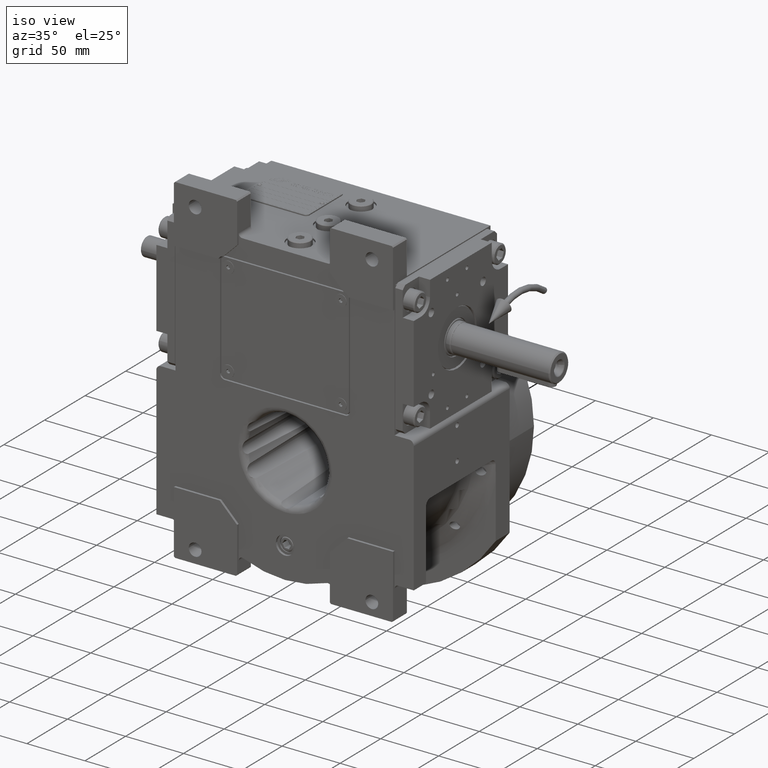
[diagram: clean part render]
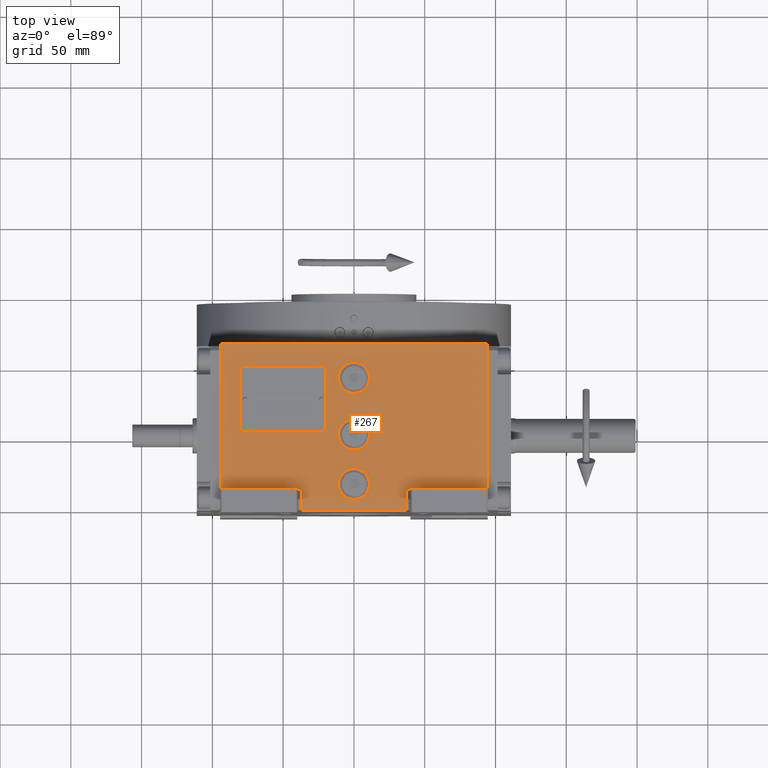
[diagram: tour spotlight — one face highlighted and labeled with its STEP entity id]
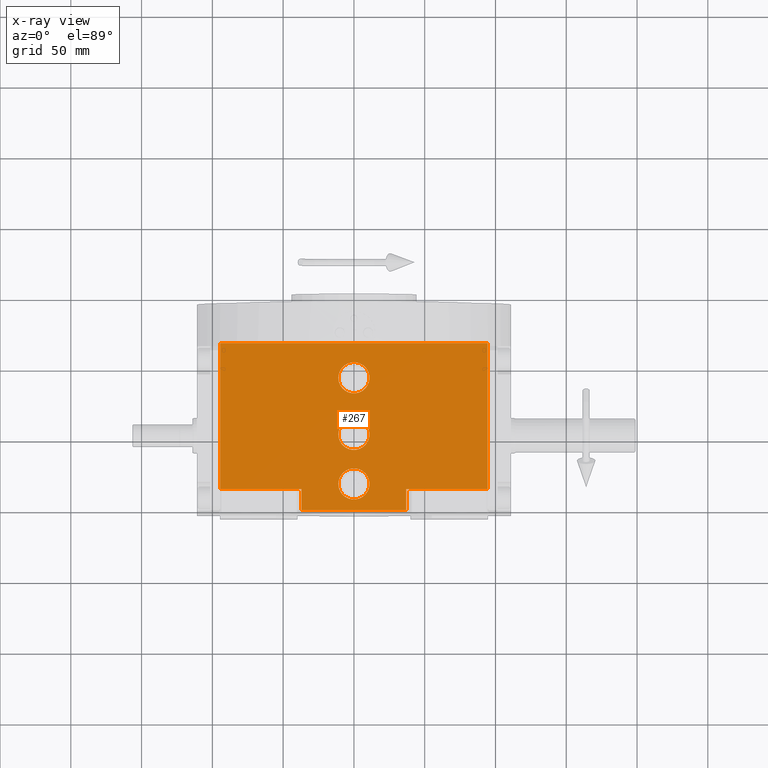
[diagram: x-ray of the same camera — body ghosted, this tour face saturated]
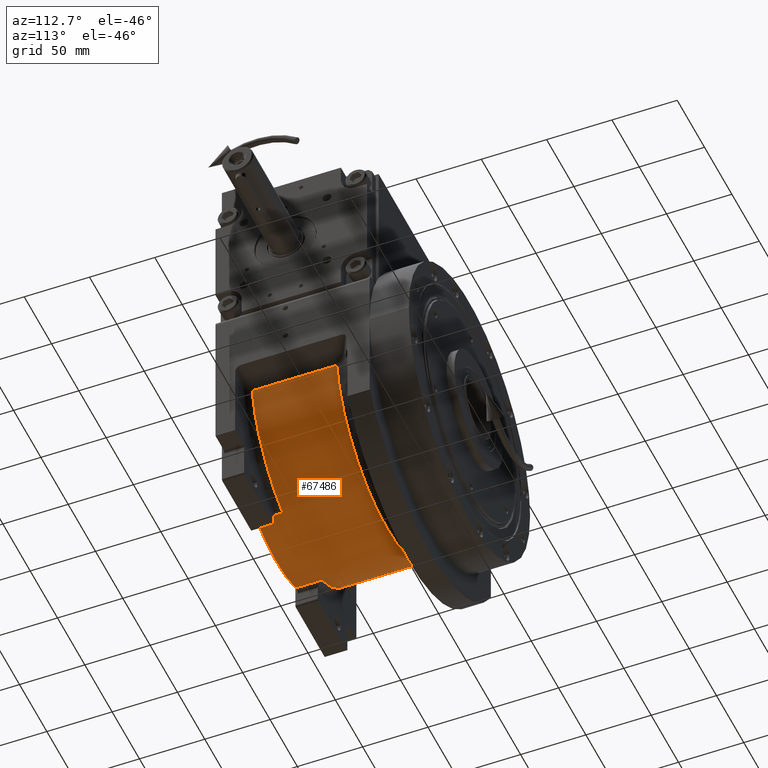
[diagram: tour spotlight — one face highlighted and labeled with its STEP entity id]
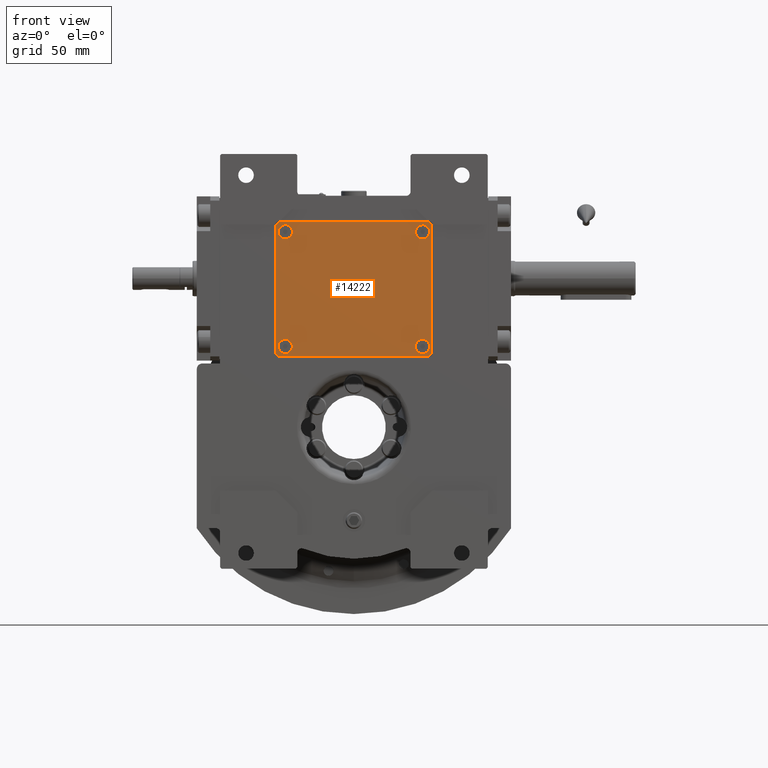
[diagram: tour spotlight — one face highlighted and labeled with its STEP entity id]
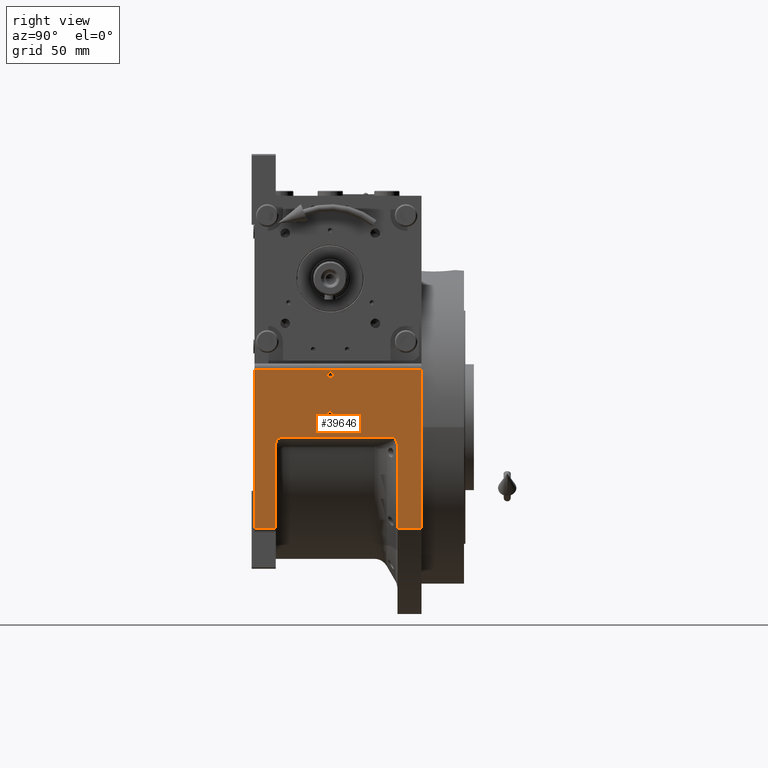
[diagram: tour spotlight — one face highlighted and labeled with its STEP entity id]
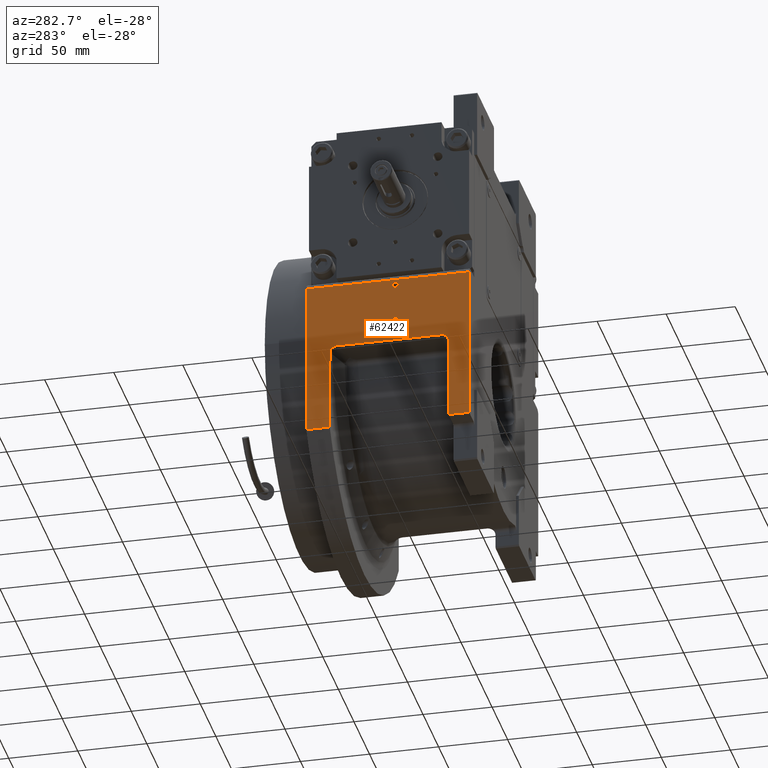
[diagram: tour spotlight — one face highlighted and labeled with its STEP entity id]
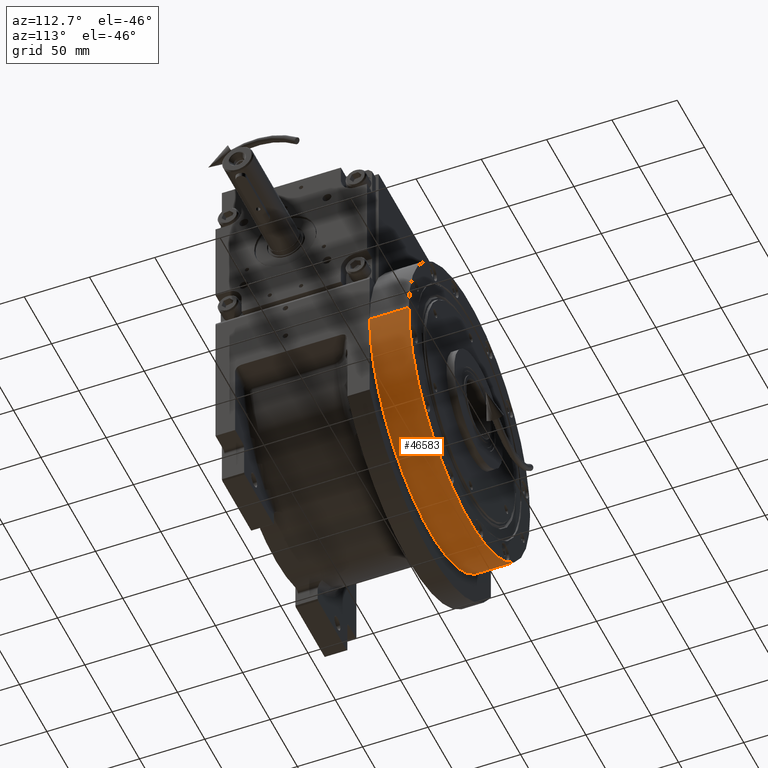
[diagram: tour spotlight — one face highlighted and labeled with its STEP entity id]
A machine part: a face-by-face anatomy tour. The part has 1999 B-rep faces; the first image is the clean iso view, then the 6 largest visible faces are spotlighted one at a time (largest first), each with its STEP entity span.

Face 1 — top view, entity #267. An x-ray twin of the same camera follows (body ghosted, this face saturated) — the face is partly hidden behind the body. In plain terms, the highlighted planar face has unit normal (0, 0, 1).
Definition (entity closure, byte-faithful):
#19 = CIRCLE ( 'NONE', #56860, 11.00000000000000000 ) ;
#267 = ADVANCED_FACE ( 'NONE', ( #10609, #15492, #37112, #36777 ), #32226, .T. ) ;
#503 = ORIENTED_EDGE ( 'NONE', *, *, #64705, .F. ) ;
#1082 = CARTESIAN_POINT ( 'NONE',  ( -36.99999999999929656, -53.50000000000000000, 163.5000000000000000 ) ) ;
#3216 = DIRECTION ( 'NONE',  ( -1.000000000000000000, 0.000000000000000000, 0.000000000000000000 ) ) ;
#3516 = AXIS2_PLACEMENT_3D ( 'NONE', #22794, #32241, #37488 ) ;
#4111 = CARTESIAN_POINT ( 'NONE',  ( 36.99999999999934630, -38.50000000000000000, 163.5000000000000000 ) ) ;
#4494 = ORIENTED_EDGE ( 'NONE', *, *, #31065, .F. ) ;
#4781 = LINE ( 'NONE', #4111, #31640 ) ;
#4893 = DIRECTION ( 'NONE',  ( 0.000000000000000000, 0.000000000000000000, 1.000000000000000000 ) ) ;
#5779 = DIRECTION ( 'NONE',  ( 0.000000000000000000, 0.000000000000000000, 1.000000000000000000 ) ) ;
#6104 = CIRCLE ( 'NONE', #54008, 11.00000000000000000 ) ;
#6397 = DIRECTION ( 'NONE',  ( 0.000000000000000000, 1.000000000000000000, 0.000000000000000000 ) ) ;
#6656 = DIRECTION ( 'NONE',  ( 1.000000000000000000, 0.000000000000000000, 0.000000000000000000 ) ) ;
#6993 = LINE ( 'NONE', #1082, #42547 ) ;
#7229 = CARTESIAN_POINT ( 'NONE',  ( 11.00000000000000000, 40.00000000000000000, 163.5000000000000000 ) ) ;
#7358 = CARTESIAN_POINT ( 'NONE',  ( 94.50000000000000000, -38.50000000000000000, 163.5000000000000000 ) ) ;
#8089 = VECTOR ( 'NONE', #13547, 1000.000000000000000 ) ;
#9761 = CARTESIAN_POINT ( 'NONE',  ( 36.99999999999934630, -53.50000000000000000, 163.5000000000000000 ) ) ;
#10027 = CARTESIAN_POINT ( 'NONE',  ( 94.50000000000000000, -38.50000000000000000, 163.5000000000000000 ) ) ;
#10609 = FACE_BOUND ( 'NONE', #57634, .T. ) ;
#10784 = CARTESIAN_POINT ( 'NONE',  ( 11.00000000000000000, -35.00000000000000000, 163.5000000000000000 ) ) ;
#11896 = CARTESIAN_POINT ( 'NONE',  ( -11.00000000000000000, 0.000000000000000000, 163.5000000000000000 ) ) ;
#11908 = VERTEX_POINT ( 'NONE', #19553 ) ;
#12762 = CARTESIAN_POINT ( 'NONE',  ( -36.99999999999929656, -38.50000000000000000, 163.5000000000000000 ) ) ;
#13547 = DIRECTION ( 'NONE',  ( 1.000000000000000000, 0.000000000000000000, 0.000000000000000000 ) ) ;
#14003 = ORIENTED_EDGE ( 'NONE', *, *, #68929, .T. ) ;
#15214 = DIRECTION ( 'NONE',  ( -1.000000000000000000, 0.000000000000000000, 0.000000000000000000 ) ) ;
#15492 = FACE_BOUND ( 'NONE', #36121, .T. ) ;
#15780 = CARTESIAN_POINT ( 'NONE',  ( -94.50000000000000000, -38.50000000000000000, 163.5000000000000000 ) ) ;
#16727 = VERTEX_POINT ( 'NONE', #31852 ) ;
#16760 = DIRECTION ( 'NONE',  ( 0.000000000000000000, 0.000000000000000000, 1.000000000000000000 ) ) ;
#17674 = ORIENTED_EDGE ( 'NONE', *, *, #25197, .F. ) ;
#19040 = AXIS2_PLACEMENT_3D ( 'NONE', #58124, #5779, #15214 ) ;
#19092 = VERTEX_POINT ( 'NONE', #7229 ) ;
#19553 = CARTESIAN_POINT ( 'NONE',  ( -11.00000000000000000, -35.00000000000000000, 163.5000000000000000 ) ) ;
#19594 = EDGE_CURVE ( 'NONE', #21521, #11908, #49456, .T. ) ;
#20064 = VECTOR ( 'NONE', #61650, 1000.000000000000000 ) ;
#21521 = VERTEX_POINT ( 'NONE', #10784 ) ;
#21642 = DIRECTION ( 'NONE',  ( 0.000000000000000000, 0.000000000000000000, 1.000000000000000000 ) ) ;
#22391 = CIRCLE ( 'NONE', #19040, 11.00000000000000000 ) ;
#22794 = CARTESIAN_POINT ( 'NONE',  ( 0.000000000000000000, 0.000000000000000000, 163.5000000000000000 ) ) ;
#24795 = VERTEX_POINT ( 'NONE', #37653 ) ;
#25197 = EDGE_CURVE ( 'NONE', #67619, #40168, #32505, .T. ) ;
#26071 = ORIENTED_EDGE ( 'NONE', *, *, #68383, .F. ) ;
#26760 = LINE ( 'NONE', #48052, #30230 ) ;
#27237 = CARTESIAN_POINT ( 'NONE',  ( -94.50000000000000000, -38.50000000000000000, 163.5000000000000000 ) ) ;
#28215 = ORIENTED_EDGE ( 'NONE', *, *, #19594, .F. ) ;
#28832 = VERTEX_POINT ( 'NONE', #15780 ) ;
#29560 = LINE ( 'NONE', #40060, #8089 ) ;
#29766 = VERTEX_POINT ( 'NONE', #12762 ) ;
#29905 = VERTEX_POINT ( 'NONE', #68209 ) ;
#30230 = VECTOR ( 'NONE', #43815, 1000.000000000000000 ) ;
#31065 = EDGE_CURVE ( 'NONE', #40168, #67619, #22391, .T. ) ;
#31640 = VECTOR ( 'NONE', #41454, 1000.000000000000000 ) ;
#31852 = CARTESIAN_POINT ( 'NONE',  ( 36.99999999999934630, -38.50000000000000000, 163.5000000000000000 ) ) ;
#32226 = PLANE ( 'NONE',  #66129 ) ;
#32241 = DIRECTION ( 'NONE',  ( 0.000000000000000000, 0.000000000000000000, 1.000000000000000000 ) ) ;
#32464 = DIRECTION ( 'NONE',  ( 1.000000000000000000, 0.000000000000000000, 0.000000000000000000 ) ) ;
#32505 = CIRCLE ( 'NONE', #3516, 11.00000000000000000 ) ;
#32823 = EDGE_CURVE ( 'NONE', #28832, #24795, #49655, .T. ) ;
#32951 = EDGE_CURVE ( 'NONE', #11908, #21521, #43778, .T. ) ;
#34703 = EDGE_LOOP ( 'NONE', ( #14003, #61443, #55585, #57167, #37504, #35289, #42305, #26071 ) ) ;
#35289 = ORIENTED_EDGE ( 'NONE', *, *, #32823, .F. ) ;
#35304 = CARTESIAN_POINT ( 'NONE',  ( 0.000000000000000000, 40.00000000000000000, 163.5000000000000000 ) ) ;
#36121 = EDGE_LOOP ( 'NONE', ( #28215, #63437 ) ) ;
#36777 = FACE_OUTER_BOUND ( 'NONE', #34703, .T. ) ;
#36932 = VERTEX_POINT ( 'NONE', #47271 ) ;
#37112 = FACE_BOUND ( 'NONE', #43698, .T. ) ;
#37376 = CARTESIAN_POINT ( 'NONE',  ( 0.000000000000000000, -35.00000000000000000, 163.5000000000000000 ) ) ;
#37488 = DIRECTION ( 'NONE',  ( 1.000000000000000000, 0.000000000000000000, 0.000000000000000000 ) ) ;
#37504 = ORIENTED_EDGE ( 'NONE', *, *, #49811, .F. ) ;
#37653 = CARTESIAN_POINT ( 'NONE',  ( -94.50000000000000000, 64.50000000000000000, 163.5000000000000000 ) ) ;
#37739 = DIRECTION ( 'NONE',  ( 0.000000000000000000, 1.000000000000000000, 0.000000000000000000 ) ) ;
#40060 = CARTESIAN_POINT ( 'NONE',  ( -36.99999999999929656, -53.50000000000000000, 163.5000000000000000 ) ) ;
#40168 = VERTEX_POINT ( 'NONE', #11896 ) ;
#40877 = DIRECTION ( 'NONE',  ( 1.000000000000000000, 0.000000000000000000, 0.000000000000000000 ) ) ;
#41454 = DIRECTION ( 'NONE',  ( 1.000000000000000000, 0.000000000000000000, 0.000000000000000000 ) ) ;
#41509 = VECTOR ( 'NONE', #6397, 1000.000000000000000 ) ;
#41607 = VECTOR ( 'NONE', #41736, 1000.000000000000000 ) ;
#41736 = DIRECTION ( 'NONE',  ( 1.000000000000000000, 0.000000000000000000, 0.000000000000000000 ) ) ;
#41815 = VERTEX_POINT ( 'NONE', #9761 ) ;
#42305 = ORIENTED_EDGE ( 'NONE', *, *, #62918, .T. ) ;
#42547 = VECTOR ( 'NONE', #37739, 1000.000000000000000 ) ;
#43698 = EDGE_LOOP ( 'NONE', ( #51674, #503 ) ) ;
#43778 = CIRCLE ( 'NONE', #54894, 11.00000000000000000 ) ;
#43815 = DIRECTION ( 'NONE',  ( 0.000000000000000000, -1.000000000000000000, 0.000000000000000000 ) ) ;
#46325 = LINE ( 'NONE', #10027, #20064 ) ;
#47271 = CARTESIAN_POINT ( 'NONE',  ( 94.50000000000000000, 64.50000000000000000, 163.5000000000000000 ) ) ;
#47932 = DIRECTION ( 'NONE',  ( 1.000000000000000000, 0.000000000000000000, 0.000000000000000000 ) ) ;
#48052 = CARTESIAN_POINT ( 'NONE',  ( 36.99999999999934630, -38.50000000000000000, 163.5000000000000000 ) ) ;
#49456 = CIRCLE ( 'NONE', #58357, 11.00000000000000000 ) ;
#49655 = LINE ( 'NONE', #54187, #41509 ) ;
#49811 = EDGE_CURVE ( 'NONE', #24795, #36932, #63350, .T. ) ;
#50569 = EDGE_CURVE ( 'NONE', #16727, #60284, #4781, .T. ) ;
#51674 = ORIENTED_EDGE ( 'NONE', *, *, #53279, .F. ) ;
#53279 = EDGE_CURVE ( 'NONE', #19092, #65630, #6104, .T. ) ;
#54008 = AXIS2_PLACEMENT_3D ( 'NONE', #35304, #4893, #40877 ) ;
#54107 = LINE ( 'NONE', #27237, #54956 ) ;
#54187 = CARTESIAN_POINT ( 'NONE',  ( -94.50000000000000000, -38.50000000000000000, 163.5000000000000000 ) ) ;
#54894 = AXIS2_PLACEMENT_3D ( 'NONE', #55575, #66369, #3216 ) ;
#54956 = VECTOR ( 'NONE', #6656, 1000.000000000000000 ) ;
#55575 = CARTESIAN_POINT ( 'NONE',  ( 0.000000000000000000, -35.00000000000000000, 163.5000000000000000 ) ) ;
#55585 = ORIENTED_EDGE ( 'NONE', *, *, #50569, .T. ) ;
#56860 = AXIS2_PLACEMENT_3D ( 'NONE', #58989, #21642, #64883 ) ;
#57167 = ORIENTED_EDGE ( 'NONE', *, *, #60775, .T. ) ;
#57634 = EDGE_LOOP ( 'NONE', ( #17674, #4494 ) ) ;
#57698 = CARTESIAN_POINT ( 'NONE',  ( -11.00000000000000000, 40.00000000000000000, 163.5000000000000000 ) ) ;
#58054 = DIRECTION ( 'NONE',  ( 0.000000000000000000, 0.000000000000000000, 1.000000000000000000 ) ) ;
#58124 = CARTESIAN_POINT ( 'NONE',  ( 0.000000000000000000, 0.000000000000000000, 163.5000000000000000 ) ) ;
#58357 = AXIS2_PLACEMENT_3D ( 'NONE', #37376, #16760, #32464 ) ;
#58989 = CARTESIAN_POINT ( 'NONE',  ( 0.000000000000000000, 40.00000000000000000, 163.5000000000000000 ) ) ;
#59084 = CARTESIAN_POINT ( 'NONE',  ( -94.50000000000000000, -53.50000000000000000, 163.5000000000000000 ) ) ;
#60284 = VERTEX_POINT ( 'NONE', #7358 ) ;
#60775 = EDGE_CURVE ( 'NONE', #60284, #36932, #46325, .T. ) ;
#61443 = ORIENTED_EDGE ( 'NONE', *, *, #62243, .F. ) ;
#61650 = DIRECTION ( 'NONE',  ( 0.000000000000000000, 1.000000000000000000, 0.000000000000000000 ) ) ;
#62243 = EDGE_CURVE ( 'NONE', #16727, #41815, #26760, .T. ) ;
#62593 = CARTESIAN_POINT ( 'NONE',  ( 11.00000000000000000, -1.179289943096200059E-15, 163.5000000000000000 ) ) ;
#62918 = EDGE_CURVE ( 'NONE', #28832, #29766, #54107, .T. ) ;
#63350 = LINE ( 'NONE', #64032, #41607 ) ;
#63437 = ORIENTED_EDGE ( 'NONE', *, *, #32951, .F. ) ;
#64032 = CARTESIAN_POINT ( 'NONE',  ( -94.50000000000000000, 64.50000000000000000, 163.5000000000000000 ) ) ;
#64705 = EDGE_CURVE ( 'NONE', #65630, #19092, #19, .T. ) ;
#64883 = DIRECTION ( 'NONE',  ( -1.000000000000000000, 0.000000000000000000, 0.000000000000000000 ) ) ;
#65630 = VERTEX_POINT ( 'NONE', #57698 ) ;
#66129 = AXIS2_PLACEMENT_3D ( 'NONE', #59084, #58054, #47932 ) ;
#66369 = DIRECTION ( 'NONE',  ( 0.000000000000000000, 0.000000000000000000, 1.000000000000000000 ) ) ;
#67619 = VERTEX_POINT ( 'NONE', #62593 ) ;
#68209 = CARTESIAN_POINT ( 'NONE',  ( -36.99999999999929656, -53.50000000000000000, 163.5000000000000000 ) ) ;
#68383 = EDGE_CURVE ( 'NONE', #29905, #29766, #6993, .T. ) ;
#68929 = EDGE_CURVE ( 'NONE', #29905, #41815, #29560, .T. ) ;

Face 2 — auxiliary view, entity #67486. In plain terms, the highlighted cylindrical surface (partial cylindrical patch) has radius 93 mm, axis along (0, 1, 0).
Definition (entity closure, byte-faithful):
#293 = CIRCLE ( 'NONE', #34892, 92.99999999999995737 ) ;
#862 = DIRECTION ( 'NONE',  ( 0.9865608847851539132, -1.678764654171103455E-15, -0.1633940654122239822 ) ) ;
#1353 = VECTOR ( 'NONE', #26194, 1000.000000000000000 ) ;
#2012 = CIRCLE ( 'NONE', #41034, 93.00000000000001421 ) ;
#2197 = EDGE_CURVE ( 'NONE', #44601, #62986, #2012, .T. ) ;
#3104 = DIRECTION ( 'NONE',  ( -0.3854166666666659080, 0.000000000000000000, -0.9227426472508768462 ) ) ;
#3510 = VECTOR ( 'NONE', #58107, 1000.000000000000000 ) ;
#4493 = CARTESIAN_POINT ( 'NONE',  ( -4.517455316885850268E-28, -53.50000000000000000, 0.000000000000000000 ) ) ;
#5730 = VERTEX_POINT ( 'NONE', #11904 ) ;
#8538 = DIRECTION ( 'NONE',  ( 0.9865608847878558629, 0.000000000000000000, -0.1633940653959109757 ) ) ;
#9049 = ORIENTED_EDGE ( 'NONE', *, *, #22899, .T. ) ;
#9812 = CARTESIAN_POINT ( 'NONE',  ( 91.75016228501930016, 31.21878281274199907, -15.19564808333685058 ) ) ;
#10097 = DIRECTION ( 'NONE',  ( 0.000000000000000000, 1.000000000000000000, 0.000000000000000000 ) ) ;
#11904 = CARTESIAN_POINT ( 'NONE',  ( 35.84375000000000000, -33.50000000000000000, -85.81506619433150718 ) ) ;
#11981 = CIRCLE ( 'NONE', #60971, 93.00000000000001421 ) ;
#12377 = CARTESIAN_POINT ( 'NONE',  ( -35.84375000000000000, -53.50000000000000000, -85.81506619433150718 ) ) ;
#12884 = EDGE_LOOP ( 'NONE', ( #56708, #25220, #40215, #44957, #13568, #45244, #36877, #9049 ) ) ;
#13013 = DIRECTION ( 'NONE',  ( 0.000000000000000000, -1.000000000000000000, 0.000000000000000000 ) ) ;
#13568 = ORIENTED_EDGE ( 'NONE', *, *, #38050, .F. ) ;
#14547 = CARTESIAN_POINT ( 'NONE',  ( -91.75016228501930016, -33.50000000000000000, -15.19564808333695183 ) ) ;
#14612 = CARTESIAN_POINT ( 'NONE',  ( -91.75030103113060420, 31.21878279875124917, -15.19503959111690072 ) ) ;
#14909 = AXIS2_PLACEMENT_3D ( 'NONE', #40299, #61551, #8538 ) ;
#15762 = AXIS2_PLACEMENT_3D ( 'NONE', #4493, #10097, #43120 ) ;
#17596 = DIRECTION ( 'NONE',  ( 5.743225055535190204E-15, 1.000000000000000000, 2.439003765979129920E-14 ) ) ;
#18919 = CARTESIAN_POINT ( 'NONE',  ( 35.84375000000000000, -33.50000000000000000, -85.81506619433150718 ) ) ;
#19768 = LINE ( 'NONE', #14547, #34390 ) ;
#22899 = EDGE_CURVE ( 'NONE', #5730, #54150, #28344, .T. ) ;
#23715 = VERTEX_POINT ( 'NONE', #44146 ) ;
#25220 = ORIENTED_EDGE ( 'NONE', *, *, #47025, .T. ) ;
#25313 = LINE ( 'NONE', #63663, #3510 ) ;
#26194 = DIRECTION ( 'NONE',  ( 0.000000000000000000, -1.000000000000000000, 0.000000000000000000 ) ) ;
#28344 = LINE ( 'NONE', #18919, #30620 ) ;
#30620 = VECTOR ( 'NONE', #13013, 1000.000000000000000 ) ;
#30995 = CYLINDRICAL_SURFACE ( 'NONE', #15762, 93.00000000000000000 ) ;
#33322 = EDGE_CURVE ( 'NONE', #51320, #54150, #293, .T. ) ;
#34390 = VECTOR ( 'NONE', #40728, 1000.000000000000000 ) ;
#34892 = AXIS2_PLACEMENT_3D ( 'NONE', #46042, #40461, #45712 ) ;
#36049 = CARTESIAN_POINT ( 'NONE',  ( -91.75016228508779648, -33.50000000000000000, -15.19564808292360070 ) ) ;
#36877 = ORIENTED_EDGE ( 'NONE', *, *, #50161, .T. ) ;
#38050 = EDGE_CURVE ( 'NONE', #23715, #58200, #11981, .T. ) ;
#40215 = ORIENTED_EDGE ( 'NONE', *, *, #2197, .T. ) ;
#40299 = CARTESIAN_POINT ( 'NONE',  ( 1.421085471520200056E-14, -33.50000000000000000, 1.421085471520200056E-14 ) ) ;
#40461 = DIRECTION ( 'NONE',  ( 0.000000000000000000, -1.000000000000000000, 0.000000000000000000 ) ) ;
#40728 = DIRECTION ( 'NONE',  ( 0.000000000000000000, 1.000000000000000000, 0.000000000000000000 ) ) ;
#40790 = DIRECTION ( 'NONE',  ( 0.000000000000000000, 1.000000000000000000, 0.000000000000000000 ) ) ;
#41014 = EDGE_CURVE ( 'NONE', #62986, #58200, #19768, .T. ) ;
#41034 = AXIS2_PLACEMENT_3D ( 'NONE', #62399, #40790, #3104 ) ;
#41664 = CIRCLE ( 'NONE', #14909, 93.00000000000001421 ) ;
#43120 = DIRECTION ( 'NONE',  ( 0.000000000000000000, 0.000000000000000000, 1.000000000000000000 ) ) ;
#44146 = CARTESIAN_POINT ( 'NONE',  ( 91.75016228501930016, 31.21878281274259948, -15.19564808333685058 ) ) ;
#44601 = VERTEX_POINT ( 'NONE', #56129 ) ;
#44957 = ORIENTED_EDGE ( 'NONE', *, *, #41014, .T. ) ;
#45244 = ORIENTED_EDGE ( 'NONE', *, *, #49369, .T. ) ;
#45712 = DIRECTION ( 'NONE',  ( -0.3854166666666672403, 0.000000000000000000, -0.9227426472508764022 ) ) ;
#46042 = CARTESIAN_POINT ( 'NONE',  ( 1.421085471520200056E-14, -53.50000000000000000, -4.263256414560599853E-14 ) ) ;
#47025 = EDGE_CURVE ( 'NONE', #51320, #44601, #25313, .T. ) ;
#49369 = EDGE_CURVE ( 'NONE', #23715, #55802, #57601, .T. ) ;
#50161 = EDGE_CURVE ( 'NONE', #55802, #5730, #41664, .T. ) ;
#51320 = VERTEX_POINT ( 'NONE', #12377 ) ;
#52306 = FACE_OUTER_BOUND ( 'NONE', #12884, .T. ) ;
#52790 = CARTESIAN_POINT ( 'NONE',  ( 35.84375000000000000, -53.50000000000000000, -85.81506619433150718 ) ) ;
#54150 = VERTEX_POINT ( 'NONE', #52790 ) ;
#55802 = VERTEX_POINT ( 'NONE', #58440 ) ;
#56129 = CARTESIAN_POINT ( 'NONE',  ( -35.84375000000000000, -33.50000000000000000, -85.81506619433150718 ) ) ;
#56708 = ORIENTED_EDGE ( 'NONE', *, *, #33322, .F. ) ;
#57601 = LINE ( 'NONE', #9812, #1353 ) ;
#58107 = DIRECTION ( 'NONE',  ( 1.776356839400250070E-15, 1.000000000000000000, -7.105427357601000281E-16 ) ) ;
#58200 = VERTEX_POINT ( 'NONE', #14612 ) ;
#58440 = CARTESIAN_POINT ( 'NONE',  ( 91.75016228514499517, -33.50000000000000000, -15.19564808257825028 ) ) ;
#59471 = CARTESIAN_POINT ( 'NONE',  ( 1.421085471520200056E-14, 31.21878281274215183, 0.000000000000000000 ) ) ;
#60971 = AXIS2_PLACEMENT_3D ( 'NONE', #59471, #17596, #862 ) ;
#61551 = DIRECTION ( 'NONE',  ( 0.000000000000000000, 1.000000000000000000, 0.000000000000000000 ) ) ;
#62399 = CARTESIAN_POINT ( 'NONE',  ( -5.684341886080798963E-14, -33.50000000000000000, -4.973799150320699408E-14 ) ) ;
#62986 = VERTEX_POINT ( 'NONE', #36049 ) ;
#63663 = CARTESIAN_POINT ( 'NONE',  ( -35.84375000000000000, -53.50000000000000000, -85.81506619433150718 ) ) ;
#67486 = ADVANCED_FACE ( 'NONE', ( #52306 ), #30995, .T. ) ;

Face 3 — front view, entity #14222. In plain terms, the highlighted planar face has unit normal (0, -1, -0).
Definition (entity closure, byte-faithful):
#563 = EDGE_LOOP ( 'NONE', ( #3538, #36644 ) ) ;
#641 = AXIS2_PLACEMENT_3D ( 'NONE', #53715, #11507, #47108 ) ;
#1340 = CARTESIAN_POINT ( 'NONE',  ( 55.00000000000026290, 45.50000000000000000, 3.000000000000002665 ) ) ;
#1501 = VERTEX_POINT ( 'NONE', #15503 ) ;
#1747 = EDGE_CURVE ( 'NONE', #31939, #49906, #54881, .T. ) ;
#2188 = EDGE_CURVE ( 'NONE', #68288, #31939, #3453, .T. ) ;
#2495 = AXIS2_PLACEMENT_3D ( 'NONE', #49310, #39177, #22087 ) ;
#2766 = CARTESIAN_POINT ( 'NONE',  ( -52.99999999999973710, 47.50000000000000000, 3.000000000000259348 ) ) ;
#2834 = CIRCLE ( 'NONE', #5073, 4.499999999999997335 ) ;
#3453 = LINE ( 'NONE', #2766, #56611 ) ;
#3538 = ORIENTED_EDGE ( 'NONE', *, *, #9438, .F. ) ;
#3557 = VECTOR ( 'NONE', #53555, 1000.000000000000000 ) ;
#4099 = DIRECTION ( 'NONE',  ( 9.255241265799875595E-31, 0.000000000000000000, 1.000000000000000000 ) ) ;
#4618 = CARTESIAN_POINT ( 'NONE',  ( -48.49999999999973710, 40.49999999999999289, 3.000000000000259348 ) ) ;
#4711 = DIRECTION ( 'NONE',  ( 9.255241265799875595E-31, 0.000000000000000000, 1.000000000000000000 ) ) ;
#4776 = DIRECTION ( 'NONE',  ( 1.000000000000000000, 1.541976423090496028E-15, 0.000000000000000000 ) ) ;
#5073 = AXIS2_PLACEMENT_3D ( 'NONE', #4618, #50819, #68116 ) ;
#5448 = VERTEX_POINT ( 'NONE', #52020 ) ;
#6262 = AXIS2_PLACEMENT_3D ( 'NONE', #63046, #15261, #16288 ) ;
#6470 = CARTESIAN_POINT ( 'NONE',  ( -55.00000000000000000, -45.49999999999973710, 3.000000000000266454 ) ) ;
#7359 = CARTESIAN_POINT ( 'NONE',  ( -52.99999999999973710, 47.50000000000000000, 3.000000000000259348 ) ) ;
#7834 = AXIS2_PLACEMENT_3D ( 'NONE', #33009, #42103, #10359 ) ;
#8087 = CIRCLE ( 'NONE', #2495, 4.499999999999997335 ) ;
#9438 = EDGE_CURVE ( 'NONE', #59532, #18918, #59999, .T. ) ;
#10359 = DIRECTION ( 'NONE',  ( -1.000000000000000000, -1.541976423090496028E-15, 0.000000000000000000 ) ) ;
#10674 = EDGE_CURVE ( 'NONE', #62688, #43942, #18701, .T. ) ;
#10753 = CARTESIAN_POINT ( 'NONE',  ( 55.00000000000000000, -45.50000000000000000, 3.000000000000002665 ) ) ;
#10905 = VERTEX_POINT ( 'NONE', #33716 ) ;
#11507 = DIRECTION ( 'NONE',  ( -9.255241265799875595E-31, -1.734010775707216474E-60, 1.000000000000000000 ) ) ;
#11648 = DIRECTION ( 'NONE',  ( -9.367723249499515189E-31, -1.000000000000000000, 0.000000000000000000 ) ) ;
#11874 = EDGE_LOOP ( 'NONE', ( #62054, #36592 ) ) ;
#13282 = EDGE_CURVE ( 'NONE', #68554, #68288, #61696, .T. ) ;
#13575 = EDGE_CURVE ( 'NONE', #10905, #18664, #2834, .T. ) ;
#13591 = CARTESIAN_POINT ( 'NONE',  ( -52.99999999999973710, 40.49999999999999289, 3.000000000000259348 ) ) ;
#13930 = CARTESIAN_POINT ( 'NONE',  ( 53.00000000000026290, 47.50000000000000000, 3.000000000000002665 ) ) ;
#14222 = ADVANCED_FACE ( 'NONE', ( #14247, #21612, #42909, #64176, #16390 ), #32438, .T. ) ;
#14247 = FACE_OUTER_BOUND ( 'NONE', #60699, .T. ) ;
#14517 = EDGE_LOOP ( 'NONE', ( #50083, #32588 ) ) ;
#15261 = DIRECTION ( 'NONE',  ( 9.255241265799875595E-31, 0.000000000000000000, 1.000000000000000000 ) ) ;
#15503 = CARTESIAN_POINT ( 'NONE',  ( 53.00000000000026290, 40.49999999999999289, 3.000000000000002665 ) ) ;
#16288 = DIRECTION ( 'NONE',  ( 1.000000000000000000, 1.541976423090496028E-15, 0.000000000000000000 ) ) ;
#16321 = CARTESIAN_POINT ( 'NONE',  ( -52.99999999999973710, -40.49999999999973710, 3.000000000000002665 ) ) ;
#16390 = FACE_BOUND ( 'NONE', #563, .T. ) ;
#17885 = CARTESIAN_POINT ( 'NONE',  ( 55.00000000000026290, 45.50000000000000000, 3.000000000000002665 ) ) ;
#18057 = ORIENTED_EDGE ( 'NONE', *, *, #2188, .T. ) ;
#18664 = VERTEX_POINT ( 'NONE', #13591 ) ;
#18701 = CIRCLE ( 'NONE', #42117, 4.499999999999997335 ) ;
#18918 = VERTEX_POINT ( 'NONE', #16321 ) ;
#19112 = DIRECTION ( 'NONE',  ( -1.000000000000000000, -1.541976423090496028E-15, 0.000000000000000000 ) ) ;
#20313 = VECTOR ( 'NONE', #57109, 1000.000000000000114 ) ;
#21384 = CIRCLE ( 'NONE', #53707, 4.499999999999997335 ) ;
#21506 = ORIENTED_EDGE ( 'NONE', *, *, #47150, .T. ) ;
#21588 = EDGE_CURVE ( 'NONE', #56629, #68737, #37294, .T. ) ;
#21612 = FACE_BOUND ( 'NONE', #11874, .T. ) ;
#22087 = DIRECTION ( 'NONE',  ( -1.000000000000000000, -1.541976423090496028E-15, 0.000000000000000000 ) ) ;
#23935 = CARTESIAN_POINT ( 'NONE',  ( -48.49999999999973710, -40.49999999999973710, 3.000000000000002665 ) ) ;
#24083 = CIRCLE ( 'NONE', #6262, 4.499999999999997335 ) ;
#24435 = VECTOR ( 'NONE', #11648, 1000.000000000000000 ) ;
#24521 = CIRCLE ( 'NONE', #7834, 4.499999999999997335 ) ;
#25571 = VECTOR ( 'NONE', #39175, 1000.000000000000114 ) ;
#26395 = CARTESIAN_POINT ( 'NONE',  ( 53.00000000000000000, -47.50000000000000000, 3.000000000000002665 ) ) ;
#27509 = CARTESIAN_POINT ( 'NONE',  ( 55.00000000000000000, -45.50000000000000000, 3.000000000000002665 ) ) ;
#27580 = CARTESIAN_POINT ( 'NONE',  ( -54.99999999999973710, 45.50000000000000000, 3.000000000000266454 ) ) ;
#30979 = ORIENTED_EDGE ( 'NONE', *, *, #13575, .F. ) ;
#31939 = VERTEX_POINT ( 'NONE', #27580 ) ;
#32438 = PLANE ( 'NONE',  #641 ) ;
#32588 = ORIENTED_EDGE ( 'NONE', *, *, #60895, .F. ) ;
#32708 = EDGE_CURVE ( 'NONE', #55437, #1501, #8087, .T. ) ;
#32940 = CIRCLE ( 'NONE', #46350, 4.499999999999997335 ) ;
#33009 = CARTESIAN_POINT ( 'NONE',  ( 48.50000000000026290, -40.50000000000000000, 2.999999999999738876 ) ) ;
#33716 = CARTESIAN_POINT ( 'NONE',  ( -43.99999999999973710, 40.49999999999999289, 3.000000000000009770 ) ) ;
#35258 = CARTESIAN_POINT ( 'NONE',  ( 53.00000000000026290, 47.50000000000000000, 3.000000000000002665 ) ) ;
#36314 = EDGE_CURVE ( 'NONE', #18664, #10905, #32940, .T. ) ;
#36381 = EDGE_CURVE ( 'NONE', #1501, #55437, #24083, .T. ) ;
#36592 = ORIENTED_EDGE ( 'NONE', *, *, #32708, .F. ) ;
#36644 = ORIENTED_EDGE ( 'NONE', *, *, #47049, .F. ) ;
#37294 = LINE ( 'NONE', #27509, #44989 ) ;
#38199 = LINE ( 'NONE', #58789, #3557 ) ;
#38519 = CARTESIAN_POINT ( 'NONE',  ( 53.00000000000026290, -40.50000000000000000, 2.999999999999738876 ) ) ;
#39175 = DIRECTION ( 'NONE',  ( -0.7071067811865474617, 0.7071067811865474617, -3.697785493223490101E-32 ) ) ;
#39177 = DIRECTION ( 'NONE',  ( 9.255241265799875595E-31, 0.000000000000000000, 1.000000000000000000 ) ) ;
#40108 = DIRECTION ( 'NONE',  ( -1.000000000000000000, -9.367723249499515189E-31, -9.255241265799875595E-31 ) ) ;
#41039 = DIRECTION ( 'NONE',  ( -1.000000000000000000, -1.541976423090496028E-15, 0.000000000000000000 ) ) ;
#42047 = ORIENTED_EDGE ( 'NONE', *, *, #68984, .T. ) ;
#42103 = DIRECTION ( 'NONE',  ( 9.255241265799875595E-31, 0.000000000000000000, 1.000000000000000000 ) ) ;
#42107 = ORIENTED_EDGE ( 'NONE', *, *, #21588, .T. ) ;
#42117 = AXIS2_PLACEMENT_3D ( 'NONE', #56459, #57837, #4776 ) ;
#42909 = FACE_BOUND ( 'NONE', #58405, .T. ) ;
#43548 = DIRECTION ( 'NONE',  ( 9.367723249499515189E-31, 1.000000000000000000, 0.000000000000000000 ) ) ;
#43942 = VERTEX_POINT ( 'NONE', #63665 ) ;
#44193 = CARTESIAN_POINT ( 'NONE',  ( 44.00000000000026290, 40.49999999999999289, 3.000000000000002665 ) ) ;
#44989 = VECTOR ( 'NONE', #43548, 1000.000000000000000 ) ;
#46233 = VECTOR ( 'NONE', #40108, 1000.000000000000000 ) ;
#46350 = AXIS2_PLACEMENT_3D ( 'NONE', #66903, #4099, #19112 ) ;
#46998 = LINE ( 'NONE', #26395, #20313 ) ;
#47049 = EDGE_CURVE ( 'NONE', #18918, #59532, #21384, .T. ) ;
#47108 = DIRECTION ( 'NONE',  ( 1.000000000000000000, 9.367723249499515189E-31, 9.255241265799875595E-31 ) ) ;
#47150 = EDGE_CURVE ( 'NONE', #48285, #5448, #38199, .T. ) ;
#48151 = EDGE_CURVE ( 'NONE', #49906, #48285, #59229, .T. ) ;
#48285 = VERTEX_POINT ( 'NONE', #61614 ) ;
#48765 = DIRECTION ( 'NONE',  ( 0.7071067811865474617, -0.7071067811865474617, 3.697785493223490101E-32 ) ) ;
#49310 = CARTESIAN_POINT ( 'NONE',  ( 48.50000000000026290, 40.49999999999999289, 3.000000000000002665 ) ) ;
#49654 = LINE ( 'NONE', #17885, #25571 ) ;
#49906 = VERTEX_POINT ( 'NONE', #6470 ) ;
#50083 = ORIENTED_EDGE ( 'NONE', *, *, #10674, .F. ) ;
#50819 = DIRECTION ( 'NONE',  ( 9.255241265799875595E-31, 0.000000000000000000, 1.000000000000000000 ) ) ;
#52020 = CARTESIAN_POINT ( 'NONE',  ( 53.00000000000000000, -47.50000000000000000, 3.000000000000002665 ) ) ;
#52036 = ORIENTED_EDGE ( 'NONE', *, *, #1747, .T. ) ;
#53050 = ORIENTED_EDGE ( 'NONE', *, *, #48151, .T. ) ;
#53555 = DIRECTION ( 'NONE',  ( 1.000000000000000000, 9.367723249499515189E-31, 9.255241265799875595E-31 ) ) ;
#53707 = AXIS2_PLACEMENT_3D ( 'NONE', #62633, #4711, #41039 ) ;
#53715 = CARTESIAN_POINT ( 'NONE',  ( 0.000000000000000000, 0.000000000000000000, 3.000000000000002665 ) ) ;
#54328 = CARTESIAN_POINT ( 'NONE',  ( -55.00000000000000000, -45.49999999999973710, 3.000000000000266454 ) ) ;
#54757 = VECTOR ( 'NONE', #48765, 1000.000000000000114 ) ;
#54881 = LINE ( 'NONE', #65688, #24435 ) ;
#55437 = VERTEX_POINT ( 'NONE', #44193 ) ;
#55747 = CARTESIAN_POINT ( 'NONE',  ( -43.99999999999973710, -40.49999999999973710, 2.999999999999995559 ) ) ;
#56459 = CARTESIAN_POINT ( 'NONE',  ( 48.50000000000026290, -40.50000000000000000, 2.999999999999738876 ) ) ;
#56611 = VECTOR ( 'NONE', #67624, 1000.000000000000114 ) ;
#56629 = VERTEX_POINT ( 'NONE', #10753 ) ;
#57109 = DIRECTION ( 'NONE',  ( 0.7071067811865474617, 0.7071067811865474617, 9.367723249499506431E-31 ) ) ;
#57837 = DIRECTION ( 'NONE',  ( 9.255241265799875595E-31, 0.000000000000000000, 1.000000000000000000 ) ) ;
#58405 = EDGE_LOOP ( 'NONE', ( #30979, #63761 ) ) ;
#58789 = CARTESIAN_POINT ( 'NONE',  ( -53.00000000000000000, -47.49999999999973710, 3.000000000000266454 ) ) ;
#59229 = LINE ( 'NONE', #54328, #54757 ) ;
#59532 = VERTEX_POINT ( 'NONE', #55747 ) ;
#59999 = CIRCLE ( 'NONE', #65570, 4.499999999999997335 ) ;
#60699 = EDGE_LOOP ( 'NONE', ( #42107, #65546, #65326, #18057, #52036, #53050, #21506, #42047 ) ) ;
#60895 = EDGE_CURVE ( 'NONE', #43942, #62688, #24521, .T. ) ;
#61588 = DIRECTION ( 'NONE',  ( 1.000000000000000000, 1.541976423090496028E-15, 0.000000000000000000 ) ) ;
#61614 = CARTESIAN_POINT ( 'NONE',  ( -53.00000000000000000, -47.49999999999973710, 3.000000000000266454 ) ) ;
#61696 = LINE ( 'NONE', #13930, #46233 ) ;
#61946 = DIRECTION ( 'NONE',  ( 9.255241265799875595E-31, 0.000000000000000000, 1.000000000000000000 ) ) ;
#62054 = ORIENTED_EDGE ( 'NONE', *, *, #36381, .F. ) ;
#62633 = CARTESIAN_POINT ( 'NONE',  ( -48.49999999999973710, -40.49999999999973710, 3.000000000000002665 ) ) ;
#62688 = VERTEX_POINT ( 'NONE', #38519 ) ;
#63046 = CARTESIAN_POINT ( 'NONE',  ( 48.50000000000026290, 40.49999999999999289, 3.000000000000002665 ) ) ;
#63665 = CARTESIAN_POINT ( 'NONE',  ( 44.00000000000026290, -40.50000000000000000, 2.999999999999995559 ) ) ;
#63761 = ORIENTED_EDGE ( 'NONE', *, *, #36314, .F. ) ;
#64176 = FACE_BOUND ( 'NONE', #14517, .T. ) ;
#65326 = ORIENTED_EDGE ( 'NONE', *, *, #13282, .T. ) ;
#65546 = ORIENTED_EDGE ( 'NONE', *, *, #65868, .T. ) ;
#65570 = AXIS2_PLACEMENT_3D ( 'NONE', #23935, #61946, #61588 ) ;
#65688 = CARTESIAN_POINT ( 'NONE',  ( -54.99999999999973710, 45.50000000000000000, 3.000000000000266454 ) ) ;
#65868 = EDGE_CURVE ( 'NONE', #68737, #68554, #49654, .T. ) ;
#66903 = CARTESIAN_POINT ( 'NONE',  ( -48.49999999999973710, 40.49999999999999289, 3.000000000000259348 ) ) ;
#67624 = DIRECTION ( 'NONE',  ( -0.7071067811865474617, -0.7071067811865474617, -9.367723249499506431E-31 ) ) ;
#68116 = DIRECTION ( 'NONE',  ( 1.000000000000000000, 1.541976423090496028E-15, 0.000000000000000000 ) ) ;
#68288 = VERTEX_POINT ( 'NONE', #7359 ) ;
#68554 = VERTEX_POINT ( 'NONE', #35258 ) ;
#68737 = VERTEX_POINT ( 'NONE', #1340 ) ;
#68984 = EDGE_CURVE ( 'NONE', #5448, #56629, #46998, .T. ) ;

Face 4 — right view, entity #39646. In plain terms, the highlighted planar face has unit normal (1, 0, -0).
Definition (entity closure, byte-faithful):
#136 = CARTESIAN_POINT ( 'NONE',  ( 111.0000000000000000, 2.100000000000000089, 37.00000000000000000 ) ) ;
#493 = CARTESIAN_POINT ( 'NONE',  ( 110.9999999999999716, 43.19493036065947678, -7.045511204842088482 ) ) ;
#494 = EDGE_LOOP ( 'NONE', ( #51324, #41478 ) ) ;
#761 = ORIENTED_EDGE ( 'NONE', *, *, #55897, .F. ) ;
#1197 = CARTESIAN_POINT ( 'NONE',  ( 111.0000000000000000, -3.552713678800499352E-15, 37.00000000000000000 ) ) ;
#2618 = VERTEX_POINT ( 'NONE', #68228 ) ;
#3083 = CARTESIAN_POINT ( 'NONE',  ( 110.9999999998199911, 42.40620941354220008, -7.000000000048170357 ) ) ;
#3434 = CARTESIAN_POINT ( 'NONE',  ( 110.9999999999999574, 47.26250817921272329, -12.53135113091263264 ) ) ;
#3465 = ORIENTED_EDGE ( 'NONE', *, *, #7363, .T. ) ;
#3754 = CARTESIAN_POINT ( 'NONE',  ( 110.9999999999999574, 47.38500262563848509, -17.48094355212767326 ) ) ;
#4821 = VECTOR ( 'NONE', #58221, 1000.000000000000000 ) ;
#5373 = DIRECTION ( 'NONE',  ( -6.319570704518690450E-16, 0.000000000000000000, -1.000000000000000000 ) ) ;
#5700 = FACE_OUTER_BOUND ( 'NONE', #10822, .T. ) ;
#5748 = CARTESIAN_POINT ( 'NONE',  ( 110.9999999998199911, 42.40620941354220008, -7.000000000048170357 ) ) ;
#6503 = EDGE_CURVE ( 'NONE', #33119, #33490, #68248, .T. ) ;
#6836 = VECTOR ( 'NONE', #46115, 1000.000000000000000 ) ;
#7103 = CARTESIAN_POINT ( 'NONE',  ( 110.9999999999999716, 46.78306930847411138, -9.786252467980729008 ) ) ;
#7260 = EDGE_LOOP ( 'NONE', ( #761, #57444 ) ) ;
#7363 = EDGE_CURVE ( 'NONE', #66971, #2618, #51310, .T. ) ;
#7466 = CARTESIAN_POINT ( 'NONE',  ( 110.9999999999999858, 47.09297238319260259, -10.50863868843677196 ) ) ;
#8884 = ORIENTED_EDGE ( 'NONE', *, *, #33538, .T. ) ;
#9725 = CARTESIAN_POINT ( 'NONE',  ( 110.9999999999999574, -36.42893218813446765, -7.000000000000003553 ) ) ;
#9750 = CARTESIAN_POINT ( 'NONE',  ( 111.0000000000000000, -33.50000000000000000, -6.999999999999920064 ) ) ;
#10081 = CARTESIAN_POINT ( 'NONE',  ( 111.0000000000000000, -33.50000000000000000, -7.000000000000000000 ) ) ;
#10822 = EDGE_LOOP ( 'NONE', ( #44061, #64323, #63996, #58087, #8884, #67731, #63108, #58538, #3465, #59248, #33884 ) ) ;
#11313 = EDGE_CURVE ( 'NONE', #63403, #34581, #13375, .T. ) ;
#13375 = B_SPLINE_CURVE_WITH_KNOTS ( 'NONE', 3,
 ( #5748, #48297, #493, #17233, #27715, #29087, #45147, #54905, #50386, #60835, #44102, #17921, #18611, #23514, #7103, #44795, #7466, #66048, #39562 ),
 .UNSPECIFIED., .F., .F.,
 ( 4, 1, 2, 2, 2, 2, 1, 1, 2, 2, 4 ),
 ( 0.000000000000000000, 0.1250000000000034972, 0.1875000000000038580, 0.2500000000000042188, 0.3750000000000024425, 0.5000000000000007772, 0.6249999999999996669, 0.6874999999999983347, 0.7187499999999980016, 0.7499999999999976685, 1.000000000000000000 ),
 .UNSPECIFIED. ) ;
#13572 = CARTESIAN_POINT ( 'NONE',  ( 110.9999999999999574, 47.37721023959501565, -17.15660303781627150 ) ) ;
#13656 = CARTESIAN_POINT ( 'NONE',  ( 111.0000000000000000, -3.774758283725534604E-15, 37.00000000000000000 ) ) ;
#14565 = CARTESIAN_POINT ( 'NONE',  ( 111.0000000000000000, 64.50000000000000000, 41.00000000000000000 ) ) ;
#14915 = CARTESIAN_POINT ( 'NONE',  ( 111.0000000000000000, -3.552713678800499352E-15, 9.000000000000000000 ) ) ;
#17233 = CARTESIAN_POINT ( 'NONE',  ( 111.0000000000000000, 43.64749740373729026, -7.156724411048934087 ) ) ;
#17921 = CARTESIAN_POINT ( 'NONE',  ( 110.9999999999999716, 46.32234190798379103, -8.967372511752580877 ) ) ;
#18370 = CARTESIAN_POINT ( 'NONE',  ( 111.0000000000000000, -3.774758283725534604E-15, 9.000000000000000000 ) ) ;
#18611 = CARTESIAN_POINT ( 'NONE',  ( 110.9999999999999716, 46.60653992690171776, -9.434012384678485574 ) ) ;
#18722 = EDGE_CURVE ( 'NONE', #33490, #58257, #22644, .T. ) ;
#18886 = VECTOR ( 'NONE', #5373, 1000.000000000000000 ) ;
#20707 = PLANE ( 'NONE',  #23223 ) ;
#22644 =( BOUNDED_CURVE ( )  B_SPLINE_CURVE ( 3, ( #51935, #30292, #9725, #52283 ),
 .UNSPECIFIED., .F., .F. ) 
 B_SPLINE_CURVE_WITH_KNOTS ( ( 4, 4 ),
 ( 1.570796326796059850, 3.141592653590837614 ),
 .UNSPECIFIED. ) 
 CURVE ( )  GEOMETRIC_REPRESENTATION_ITEM ( )  RATIONAL_B_SPLINE_CURVE ( ( 1.000000000000000000, 0.8047378541243930261, 0.8047378541243930261, 1.000000000000000000 ) ) 
 REPRESENTATION_ITEM ( '' )  );
#23192 = CIRCLE ( 'NONE', #58852, 2.100000000000000089 ) ;
#23223 = AXIS2_PLACEMENT_3D ( 'NONE', #41998, #52464, #31858 ) ;
#23514 = CARTESIAN_POINT ( 'NONE',  ( 110.9999999999999858, 46.71432597020061195, -9.644020489599460788 ) ) ;
#24136 = VECTOR ( 'NONE', #45998, 1000.000000000000000 ) ;
#24151 = LINE ( 'NONE', #51013, #66952 ) ;
#24153 = CARTESIAN_POINT ( 'NONE',  ( 111.0000000000000000, -53.50000000000000000, -71.43528539874399996 ) ) ;
#24535 = AXIS2_PLACEMENT_3D ( 'NONE', #18370, #38633, #65129 ) ;
#24769 = CARTESIAN_POINT ( 'NONE',  ( 111.0000000000000000, 47.50000000000000000, -71.43528539874399996 ) ) ;
#24823 = LINE ( 'NONE', #24153, #6836 ) ;
#26063 = AXIS2_PLACEMENT_3D ( 'NONE', #14915, #30952, #52259 ) ;
#26119 = LINE ( 'NONE', #9750, #4821 ) ;
#26456 = AXIS2_PLACEMENT_3D ( 'NONE', #1197, #65376, #43752 ) ;
#26705 = DIRECTION ( 'NONE',  ( 0.000000000000000000, -1.000000000000000000, 0.000000000000000000 ) ) ;
#27715 = CARTESIAN_POINT ( 'NONE',  ( 111.0000000000000284, 43.94558323494667462, -7.245586984187109891 ) ) ;
#29087 = CARTESIAN_POINT ( 'NONE',  ( 110.9999999999999858, 44.09122816550473800, -7.296733665612587849 ) ) ;
#29520 = VERTEX_POINT ( 'NONE', #30273 ) ;
#29591 = CARTESIAN_POINT ( 'NONE',  ( 110.9999999999999147, 47.39592956473512686, -17.94582316151957713 ) ) ;
#30273 = CARTESIAN_POINT ( 'NONE',  ( 111.0000000000000000, 2.100000000000000089, 9.000000000000000000 ) ) ;
#30292 = CARTESIAN_POINT ( 'NONE',  ( 110.9999999999999574, -38.49999999999984368, -9.144127173638265660 ) ) ;
#30952 = DIRECTION ( 'NONE',  ( 1.000000000000000000, -1.144832152701696034E-29, -6.767073673905710947E-15 ) ) ;
#31168 = FACE_BOUND ( 'NONE', #7260, .T. ) ;
#31697 = EDGE_CURVE ( 'NONE', #39278, #33119, #24823, .T. ) ;
#31858 = DIRECTION ( 'NONE',  ( -6.102469138343910279E-16, 0.000000000000000000, -1.000000000000000000 ) ) ;
#31875 = CARTESIAN_POINT ( 'NONE',  ( 111.0000000000000000, 64.50000000000000000, 41.00000000000000000 ) ) ;
#32006 = VERTEX_POINT ( 'NONE', #49551 ) ;
#33119 = VERTEX_POINT ( 'NONE', #37729 ) ;
#33490 = VERTEX_POINT ( 'NONE', #65941 ) ;
#33538 = EDGE_CURVE ( 'NONE', #58257, #63403, #26119, .T. ) ;
#33884 = ORIENTED_EDGE ( 'NONE', *, *, #52548, .T. ) ;
#34153 = VERTEX_POINT ( 'NONE', #49244 ) ;
#34381 = VECTOR ( 'NONE', #64492, 1000.000000000000000 ) ;
#34581 = VERTEX_POINT ( 'NONE', #38337 ) ;
#34855 = CARTESIAN_POINT ( 'NONE',  ( 110.9999999999999858, 47.35262548411426309, -16.14045418600772308 ) ) ;
#34884 = VERTEX_POINT ( 'NONE', #14565 ) ;
#35608 = VERTEX_POINT ( 'NONE', #136 ) ;
#36226 = CARTESIAN_POINT ( 'NONE',  ( 110.9999999999999858, 47.37382107352491545, -17.01630155678829581 ) ) ;
#37729 = CARTESIAN_POINT ( 'NONE',  ( 111.0000000000000000, -38.50000000000000000, -71.43528539874399996 ) ) ;
#38223 = CARTESIAN_POINT ( 'NONE',  ( 111.0000000000000000, -53.50000000000000000, -71.43528539874399996 ) ) ;
#38337 = CARTESIAN_POINT ( 'NONE',  ( 110.9999998869266022, 47.24161831933449918, -11.75654022255562126 ) ) ;
#38633 = DIRECTION ( 'NONE',  ( 1.000000000000000000, 0.000000000000000000, 0.000000000000000000 ) ) ;
#39278 = VERTEX_POINT ( 'NONE', #38223 ) ;
#39562 = CARTESIAN_POINT ( 'NONE',  ( 110.9999998869266022, 47.24161831933449918, -11.75654022255562126 ) ) ;
#39646 = ADVANCED_FACE ( 'NONE', ( #58732, #31168, #5700 ), #20707, .T. ) ;
#40091 = CARTESIAN_POINT ( 'NONE',  ( 111.0000000000000000, 47.50000000000000000, -25.44626115736659955 ) ) ;
#40531 = DIRECTION ( 'NONE',  ( 6.319570704518680589E-16, 0.000000000000000000, 1.000000000000000000 ) ) ;
#41120 = CARTESIAN_POINT ( 'NONE',  ( 110.9999999999999716, 47.37947912676571605, -17.25058397870262894 ) ) ;
#41478 = ORIENTED_EDGE ( 'NONE', *, *, #45120, .F. ) ;
#41998 = CARTESIAN_POINT ( 'NONE',  ( 111.0000000000000000, -53.50000000000000000, 45.00000000000000000 ) ) ;
#42684 = LINE ( 'NONE', #31875, #18886 ) ;
#42861 = EDGE_CURVE ( 'NONE', #68296, #35608, #23192, .T. ) ;
#43353 = EDGE_CURVE ( 'NONE', #34581, #32006, #68734, .T. ) ;
#43432 = LINE ( 'NONE', #64701, #64160 ) ;
#43752 = DIRECTION ( 'NONE',  ( 0.000000000000000000, 1.000000000000000000, 0.000000000000000000 ) ) ;
#43981 = CARTESIAN_POINT ( 'NONE',  ( 111.0000000000000000, -2.100000000000000089, 37.00000000000000000 ) ) ;
#44061 = ORIENTED_EDGE ( 'NONE', *, *, #46104, .F. ) ;
#44102 = CARTESIAN_POINT ( 'NONE',  ( 111.0000000000000000, 46.02269117539044885, -8.607473829627073414 ) ) ;
#44795 = CARTESIAN_POINT ( 'NONE',  ( 111.0000000000000000, 46.81641276431729892, -9.859722511584925186 ) ) ;
#45120 = EDGE_CURVE ( 'NONE', #47272, #29520, #66856, .T. ) ;
#45147 = CARTESIAN_POINT ( 'NONE',  ( 111.0000000000000000, 44.53223597866741557, -7.476123301251936581 ) ) ;
#45318 = CARTESIAN_POINT ( 'NONE',  ( 111.0000000000000000, 47.38034144301978046, -17.28637658354777784 ) ) ;
#45406 = DIRECTION ( 'NONE',  ( 0.000000000000000000, -1.000000000000000000, 0.000000000000000000 ) ) ;
#45998 = DIRECTION ( 'NONE',  ( 6.180107079730629528E-16, 0.000000000000000000, 1.000000000000000000 ) ) ;
#46104 = EDGE_CURVE ( 'NONE', #39278, #34153, #24151, .T. ) ;
#46115 = DIRECTION ( 'NONE',  ( 0.000000000000000000, 1.000000000000000000, 0.000000000000000000 ) ) ;
#46158 = CIRCLE ( 'NONE', #26063, 2.100000000000000089 ) ;
#46573 = VECTOR ( 'NONE', #53251, 1000.000000000000000 ) ;
#47272 = VERTEX_POINT ( 'NONE', #59454 ) ;
#48297 = CARTESIAN_POINT ( 'NONE',  ( 110.9999999999999858, 42.72604842879050580, -7.000539959136501622 ) ) ;
#49244 = CARTESIAN_POINT ( 'NONE',  ( 111.0000000000000000, -53.50000000000000000, 41.00000000000000000 ) ) ;
#49551 = CARTESIAN_POINT ( 'NONE',  ( 111.0000000000000000, 47.50000000000000000, -25.44626115736659955 ) ) ;
#50386 = CARTESIAN_POINT ( 'NONE',  ( 110.9999999999999858, 45.32914735765071867, -7.964596415155019038 ) ) ;
#50576 = EDGE_CURVE ( 'NONE', #29520, #47272, #46158, .T. ) ;
#50905 = CARTESIAN_POINT ( 'NONE',  ( 110.9999999999999574, 47.49300976463167956, -23.37757664004382363 ) ) ;
#51013 = CARTESIAN_POINT ( 'NONE',  ( 111.0000000000000000, -53.50000000000000000, -71.43528539874399996 ) ) ;
#51240 = CARTESIAN_POINT ( 'NONE',  ( 111.0000000000000000, 47.50000000000000000, -71.43528539874399996 ) ) ;
#51310 = LINE ( 'NONE', #24769, #34381 ) ;
#51324 = ORIENTED_EDGE ( 'NONE', *, *, #50576, .F. ) ;
#51935 = CARTESIAN_POINT ( 'NONE',  ( 111.0000000000000000, -38.50000000000000000, -12.17638090205032064 ) ) ;
#52259 = DIRECTION ( 'NONE',  ( 0.000000000000000000, 1.000000000000000000, -1.652117596168387559E-15 ) ) ;
#52283 = CARTESIAN_POINT ( 'NONE',  ( 111.0000000000000000, -33.50000000000000000, -7.000000000000000000 ) ) ;
#52464 = DIRECTION ( 'NONE',  ( 1.000000000000000000, 0.000000000000000000, -6.102469138343910279E-16 ) ) ;
#52548 = EDGE_CURVE ( 'NONE', #34884, #34153, #43432, .T. ) ;
#53251 = DIRECTION ( 'NONE',  ( 7.194288269028780008E-16, 0.000000000000000000, 1.000000000000000000 ) ) ;
#54905 = CARTESIAN_POINT ( 'NONE',  ( 110.9999999999999858, 44.80922033797410364, -7.621655160203046009 ) ) ;
#55104 = EDGE_CURVE ( 'NONE', #66971, #32006, #56114, .T. ) ;
#55183 = DIRECTION ( 'NONE',  ( 1.000000000000000000, 0.000000000000000000, 0.000000000000000000 ) ) ;
#55897 = EDGE_CURVE ( 'NONE', #35608, #68296, #67684, .T. ) ;
#56114 = LINE ( 'NONE', #51240, #24136 ) ;
#57444 = ORIENTED_EDGE ( 'NONE', *, *, #42861, .F. ) ;
#57455 = CARTESIAN_POINT ( 'NONE',  ( 111.0000000000000000, 47.50000000000000000, -71.43528539874399996 ) ) ;
#58087 = ORIENTED_EDGE ( 'NONE', *, *, #18722, .T. ) ;
#58221 = DIRECTION ( 'NONE',  ( 0.000000000000000000, 1.000000000000000000, 0.000000000000000000 ) ) ;
#58257 = VERTEX_POINT ( 'NONE', #10081 ) ;
#58538 = ORIENTED_EDGE ( 'NONE', *, *, #55104, .F. ) ;
#58732 = FACE_BOUND ( 'NONE', #494, .T. ) ;
#58852 = AXIS2_PLACEMENT_3D ( 'NONE', #13656, #55183, #45406 ) ;
#59248 = ORIENTED_EDGE ( 'NONE', *, *, #60070, .F. ) ;
#59454 = CARTESIAN_POINT ( 'NONE',  ( 111.0000000000000000, -2.100000000000000089, 9.000000000000000000 ) ) ;
#60070 = EDGE_CURVE ( 'NONE', #34884, #2618, #42684, .T. ) ;
#60835 = CARTESIAN_POINT ( 'NONE',  ( 110.9999999999999574, 45.57333248245377177, -8.163234121736138604 ) ) ;
#61681 = CARTESIAN_POINT ( 'NONE',  ( 110.9999999999999289, 47.46019542777067812, -20.85051949887152745 ) ) ;
#62704 = CARTESIAN_POINT ( 'NONE',  ( 110.9999998869266022, 47.24161831933449918, -11.75654022255562126 ) ) ;
#63108 = ORIENTED_EDGE ( 'NONE', *, *, #43353, .T. ) ;
#63403 = VERTEX_POINT ( 'NONE', #3083 ) ;
#63709 = CARTESIAN_POINT ( 'NONE',  ( 111.0000000000000000, -38.50000000000000000, -71.43528539874399996 ) ) ;
#63996 = ORIENTED_EDGE ( 'NONE', *, *, #6503, .T. ) ;
#64160 = VECTOR ( 'NONE', #26705, 1000.000000000000000 ) ;
#64323 = ORIENTED_EDGE ( 'NONE', *, *, #31697, .T. ) ;
#64492 = DIRECTION ( 'NONE',  ( 0.000000000000000000, 1.000000000000000000, 8.359326303060000099E-16 ) ) ;
#64701 = CARTESIAN_POINT ( 'NONE',  ( 111.0000000000000000, 64.50000000000000000, 41.00000000000000000 ) ) ;
#65129 = DIRECTION ( 'NONE',  ( 0.000000000000000000, -1.000000000000000000, 1.652117596168387559E-15 ) ) ;
#65376 = DIRECTION ( 'NONE',  ( 1.000000000000000000, 0.000000000000000000, 0.000000000000000000 ) ) ;
#65941 = CARTESIAN_POINT ( 'NONE',  ( 111.0000000000000000, -38.50000000000000000, -12.17638090205032064 ) ) ;
#66048 = CARTESIAN_POINT ( 'NONE',  ( 110.9999999999999858, 47.22446425046381080, -11.11687756950517070 ) ) ;
#66567 = CARTESIAN_POINT ( 'NONE',  ( 110.9999999999999432, 47.30109702303251140, -14.03657177442504000 ) ) ;
#66856 = CIRCLE ( 'NONE', #24535, 2.100000000000000089 ) ;
#66952 = VECTOR ( 'NONE', #40531, 1000.000000000000000 ) ;
#66971 = VERTEX_POINT ( 'NONE', #57455 ) ;
#67684 = CIRCLE ( 'NONE', #26456, 2.100000000000000089 ) ;
#67731 = ORIENTED_EDGE ( 'NONE', *, *, #11313, .T. ) ;
#68228 = CARTESIAN_POINT ( 'NONE',  ( 111.0000000000000000, 64.50000000000000000, -71.43528539874399996 ) ) ;
#68248 = LINE ( 'NONE', #63709, #46573 ) ;
#68296 = VERTEX_POINT ( 'NONE', #43981 ) ;
#68734 = B_SPLINE_CURVE_WITH_KNOTS ( 'NONE', 3,
 ( #62704, #3434, #66567, #34855, #36226, #13572, #41120, #45318, #3754, #29591, #61681, #50905, #40091 ),
 .UNSPECIFIED., .F., .F.,
 ( 4, 1, 1, 1, 2, 2, 1, 1, 4 ),
 ( 0.000000000000000000, 0.2499999999999993339, 0.3749999999999991673, 0.3906249999999991673, 0.3984374999999988898, 0.4062499999999986122, 0.4374999999999987788, 0.4999999999999991118, 1.000000000000000000 ),
 .UNSPECIFIED. ) ;

Face 5 — auxiliary view, entity #62422. In plain terms, the highlighted planar face has unit normal (-1, 0, 0).
Definition (entity closure, byte-faithful):
#153 = VECTOR ( 'NONE', #25618, 1000.000000000000000 ) ;
#225 = VERTEX_POINT ( 'NONE', #10954 ) ;
#253 = LINE ( 'NONE', #4122, #8097 ) ;
#863 = CARTESIAN_POINT ( 'NONE',  ( -111.0000000000000000, 47.37801887890174868, -17.18315811918595060 ) ) ;
#1058 = CARTESIAN_POINT ( 'NONE',  ( -111.0000000000000000, 64.50000000000000000, -71.43528539874399996 ) ) ;
#1253 =( BOUNDED_CURVE ( )  B_SPLINE_CURVE ( 3, ( #8170, #24227, #45520, #13762 ),
 .UNSPECIFIED., .F., .F. ) 
 B_SPLINE_CURVE_WITH_KNOTS ( ( 4, 4 ),
 ( 3.141592653590854045, 4.712388980385856740 ),
 .UNSPECIFIED. ) 
 CURVE ( )  GEOMETRIC_REPRESENTATION_ITEM ( )  RATIONAL_B_SPLINE_CURVE ( ( 1.000000000000000000, 0.8047378541243400685, 0.8047378541243400685, 1.000000000000000000 ) ) 
 REPRESENTATION_ITEM ( '' )  );
#1544 = CARTESIAN_POINT ( 'NONE',  ( -111.0000000000000284, 47.26671036820440008, -12.69711666045169274 ) ) ;
#1738 = LINE ( 'NONE', #1058, #6017 ) ;
#2647 = CARTESIAN_POINT ( 'NONE',  ( -111.0000000000000000, -3.552713678800499352E-15, 9.000000000000000000 ) ) ;
#3520 = CARTESIAN_POINT ( 'NONE',  ( -111.0000000000000142, 47.17730589702550503, -10.96906219321990150 ) ) ;
#3675 = DIRECTION ( 'NONE',  ( 0.000000000000000000, 1.000000000000000000, 1.652117596168387559E-15 ) ) ;
#4122 = CARTESIAN_POINT ( 'NONE',  ( -111.0000000000000000, -53.50000000000000000, -71.43528539874409944 ) ) ;
#5159 = DIRECTION ( 'NONE',  ( 0.000000000000000000, 1.000000000000000000, 0.000000000000000000 ) ) ;
#5285 = CARTESIAN_POINT ( 'NONE',  ( -111.0000000000000000, -53.50000000000000000, -71.43528539874409944 ) ) ;
#5315 = VERTEX_POINT ( 'NONE', #25622 ) ;
#5454 = ORIENTED_EDGE ( 'NONE', *, *, #48046, .F. ) ;
#5606 = DIRECTION ( 'NONE',  ( 0.000000000000000000, 0.000000000000000000, 1.000000000000000000 ) ) ;
#6017 = VECTOR ( 'NONE', #22351, 1000.000000000000000 ) ;
#6120 = CARTESIAN_POINT ( 'NONE',  ( -111.0000000000000000, -38.50000000000000000, -71.43528539874409944 ) ) ;
#6256 = EDGE_CURVE ( 'NONE', #19443, #58580, #54713, .T. ) ;
#6418 = VERTEX_POINT ( 'NONE', #29554 ) ;
#6907 = CARTESIAN_POINT ( 'NONE',  ( -111.0000000000000000, -33.50000000000000000, -7.000000000000000000 ) ) ;
#7768 = CARTESIAN_POINT ( 'NONE',  ( -111.0000000000000000, -53.50000000000000000, 41.00000000000000000 ) ) ;
#8097 = VECTOR ( 'NONE', #5159, 1000.000000000000000 ) ;
#8170 = CARTESIAN_POINT ( 'NONE',  ( -111.0000000000000000, -33.50000000000000000, -7.000000000000000000 ) ) ;
#8570 = CARTESIAN_POINT ( 'NONE',  ( -111.0000000000000000, -53.50000000000000000, -71.43528539874399996 ) ) ;
#8925 = PLANE ( 'NONE',  #11324 ) ;
#10850 = LINE ( 'NONE', #11533, #57732 ) ;
#10954 = CARTESIAN_POINT ( 'NONE',  ( -111.0000000000000000, 47.50000000000000000, -71.43528539874399996 ) ) ;
#11324 = AXIS2_PLACEMENT_3D ( 'NONE', #8570, #61941, #62612 ) ;
#11533 = CARTESIAN_POINT ( 'NONE',  ( -111.0000000000000000, 47.50000000000000000, -71.43528539874399996 ) ) ;
#11840 = EDGE_CURVE ( 'NONE', #12189, #58580, #37323, .T. ) ;
#12189 = VERTEX_POINT ( 'NONE', #15881 ) ;
#12650 = CARTESIAN_POINT ( 'NONE',  ( -111.0000000000000000, -2.100000000000000089, 37.00000000000000000 ) ) ;
#13324 = CARTESIAN_POINT ( 'NONE',  ( -110.9999999993382005, 42.40620941626179530, -7.000000000177450055 ) ) ;
#13659 = CARTESIAN_POINT ( 'NONE',  ( -110.9999999999999574, 46.59747468668511772, -9.345669636517394352 ) ) ;
#13762 = CARTESIAN_POINT ( 'NONE',  ( -111.0000000000000000, -38.50000000000000000, -12.17638090205042189 ) ) ;
#14001 = CARTESIAN_POINT ( 'NONE',  ( -111.0000000000000142, 47.23304483909880958, -11.43688986518032635 ) ) ;
#14338 = CARTESIAN_POINT ( 'NONE',  ( -111.0000000000000000, 45.20819138357048672, -7.866231648914137509 ) ) ;
#14675 = CARTESIAN_POINT ( 'NONE',  ( -111.0000000000000142, 46.96112643920030649, -10.22283934410663697 ) ) ;
#15152 = CARTESIAN_POINT ( 'NONE',  ( -111.0000000000000000, -3.552713678800499352E-15, 37.00000000000000000 ) ) ;
#15188 = VERTEX_POINT ( 'NONE', #28758 ) ;
#15210 = DIRECTION ( 'NONE',  ( 1.000000000000000000, 0.000000000000000000, 0.000000000000000000 ) ) ;
#15881 = CARTESIAN_POINT ( 'NONE',  ( -110.9999998426041969, 47.24161804384319652, -11.75654023702319861 ) ) ;
#15887 = LINE ( 'NONE', #53882, #58599 ) ;
#15892 = DIRECTION ( 'NONE',  ( 0.000000000000000000, 1.000000000000000000, 0.000000000000000000 ) ) ;
#16808 = VERTEX_POINT ( 'NONE', #12650 ) ;
#17288 = EDGE_CURVE ( 'NONE', #30231, #53024, #1738, .T. ) ;
#17830 = EDGE_CURVE ( 'NONE', #6418, #63963, #22054, .T. ) ;
#18343 = AXIS2_PLACEMENT_3D ( 'NONE', #59741, #22751, #54508 ) ;
#18528 = CARTESIAN_POINT ( 'NONE',  ( -110.9999999999999858, 44.52823829090591090, -7.482778073993033630 ) ) ;
#18543 = ORIENTED_EDGE ( 'NONE', *, *, #48472, .T. ) ;
#18881 = CARTESIAN_POINT ( 'NONE',  ( -111.0000000000000284, 43.65692249831813143, -7.119924177572298341 ) ) ;
#19443 = VERTEX_POINT ( 'NONE', #60428 ) ;
#19895 = CARTESIAN_POINT ( 'NONE',  ( -111.0000000000000142, 46.90681310458562336, -10.07660401504372771 ) ) ;
#20342 = CARTESIAN_POINT ( 'NONE',  ( -111.0000000000000000, 47.50000000000000000, -25.44626115736729588 ) ) ;
#20830 = CIRCLE ( 'NONE', #43103, 2.100000000000000089 ) ;
#21368 = CARTESIAN_POINT ( 'NONE',  ( -111.0000000000000000, 64.50000000000000000, -71.43528539874399996 ) ) ;
#22054 = LINE ( 'NONE', #31833, #65066 ) ;
#22154 = CARTESIAN_POINT ( 'NONE',  ( -110.9999999999999716, 47.35640947859300098, -16.28572579493090444 ) ) ;
#22351 = DIRECTION ( 'NONE',  ( 0.000000000000000000, 0.000000000000000000, 1.000000000000000000 ) ) ;
#22751 = DIRECTION ( 'NONE',  ( 1.000000000000000000, 0.000000000000000000, 0.000000000000000000 ) ) ;
#23012 = VERTEX_POINT ( 'NONE', #7768 ) ;
#23639 = ORIENTED_EDGE ( 'NONE', *, *, #17830, .T. ) ;
#23714 = CARTESIAN_POINT ( 'NONE',  ( -111.0000000000000000, 2.100000000000000089, 9.000000000000000000 ) ) ;
#23945 = DIRECTION ( 'NONE',  ( 1.000000000000000000, 0.000000000000000000, 0.000000000000000000 ) ) ;
#23981 = LINE ( 'NONE', #24315, #54557 ) ;
#24227 = CARTESIAN_POINT ( 'NONE',  ( -111.0000000000000142, -36.42893218813447476, -6.999999999999989342 ) ) ;
#24315 = CARTESIAN_POINT ( 'NONE',  ( -111.0000000000000000, 47.50000000000000000, -71.43528539874399996 ) ) ;
#25290 = FACE_OUTER_BOUND ( 'NONE', #48784, .T. ) ;
#25618 = DIRECTION ( 'NONE',  ( 0.000000000000000000, 0.000000000000000000, -1.000000000000000000 ) ) ;
#25622 = CARTESIAN_POINT ( 'NONE',  ( -111.0000000000000000, 2.100000000000000089, 37.00000000000000000 ) ) ;
#26914 = AXIS2_PLACEMENT_3D ( 'NONE', #15152, #68512, #31182 ) ;
#27390 = CARTESIAN_POINT ( 'NONE',  ( -111.0000000000000142, 47.38697793714037942, -17.55712914402924696 ) ) ;
#28758 = CARTESIAN_POINT ( 'NONE',  ( -111.0000000000000000, -2.100000000000000089, 9.000000000000000000 ) ) ;
#29332 = CARTESIAN_POINT ( 'NONE',  ( -111.0000000000000142, 43.04624886168785025, -7.001080695584134261 ) ) ;
#29554 = CARTESIAN_POINT ( 'NONE',  ( -111.0000000000000000, -38.50000000000000000, -12.17638090205042189 ) ) ;
#30231 = VERTEX_POINT ( 'NONE', #21368 ) ;
#30586 = CIRCLE ( 'NONE', #18343, 2.100000000000000089 ) ;
#30854 = FACE_BOUND ( 'NONE', #55806, .T. ) ;
#31182 = DIRECTION ( 'NONE',  ( 0.000000000000000000, -1.000000000000000000, 0.000000000000000000 ) ) ;
#31413 = EDGE_CURVE ( 'NONE', #19443, #6418, #1253, .T. ) ;
#31833 = CARTESIAN_POINT ( 'NONE',  ( -111.0000000000000000, -38.50000000000000000, -12.17638090205040058 ) ) ;
#31841 = CARTESIAN_POINT ( 'NONE',  ( -111.0000000000000000, 64.50000000000000000, 41.00000000000000000 ) ) ;
#32617 = CARTESIAN_POINT ( 'NONE',  ( -111.0000000000000284, 47.38981798226070907, -17.67600262140464196 ) ) ;
#33466 = ORIENTED_EDGE ( 'NONE', *, *, #38921, .T. ) ;
#34161 = VERTEX_POINT ( 'NONE', #5285 ) ;
#34605 = CARTESIAN_POINT ( 'NONE',  ( -111.0000000000000284, 44.80537002266407853, -7.628406989121505610 ) ) ;
#35434 = EDGE_LOOP ( 'NONE', ( #43067, #35944 ) ) ;
#35944 = ORIENTED_EDGE ( 'NONE', *, *, #53040, .T. ) ;
#36753 = ORIENTED_EDGE ( 'NONE', *, *, #67739, .F. ) ;
#37323 = B_SPLINE_CURVE_WITH_KNOTS ( 'NONE', 3,
 ( #45408, #14001, #3520, #66658, #14675, #19895, #61778, #13659, #61096, #40501, #14338, #34605, #18528, #56556, #18881, #29332, #13324 ),
 .UNSPECIFIED., .F., .F.,
 ( 4, 1, 1, 2, 2, 2, 1, 2, 2, 4 ),
 ( 0.000000000000000000, 0.1249999999999996114, 0.1874999999999987788, 0.2187499999999980571, 0.2499999999999973077, 0.4999999999999975575, 0.6249999999999972244, 0.6874999999999972244, 0.7499999999999972244, 1.000000000000000000 ),
 .UNSPECIFIED. ) ;
#37881 = CARTESIAN_POINT ( 'NONE',  ( -111.0000000000000142, 47.39775283363938030, -18.01025571059393826 ) ) ;
#38326 = DIRECTION ( 'NONE',  ( 0.000000000000000000, 1.000000000000000000, 0.000000000000000000 ) ) ;
#38921 = EDGE_CURVE ( 'NONE', #225, #58646, #10850, .T. ) ;
#40049 = ORIENTED_EDGE ( 'NONE', *, *, #11840, .T. ) ;
#40501 = CARTESIAN_POINT ( 'NONE',  ( -111.0000000000000142, 45.57238403428445395, -8.162200170006535416 ) ) ;
#43067 = ORIENTED_EDGE ( 'NONE', *, *, #55578, .T. ) ;
#43103 = AXIS2_PLACEMENT_3D ( 'NONE', #2647, #23945, #3675 ) ;
#43200 = ORIENTED_EDGE ( 'NONE', *, *, #48637, .T. ) ;
#43437 = CARTESIAN_POINT ( 'NONE',  ( -111.0000000000000284, 47.30739276393136095, -14.28307552350015541 ) ) ;
#43764 = DIRECTION ( 'NONE',  ( 0.000000000000000000, -1.000000000000000000, 0.000000000000000000 ) ) ;
#45020 = ORIENTED_EDGE ( 'NONE', *, *, #17288, .F. ) ;
#45408 = CARTESIAN_POINT ( 'NONE',  ( -110.9999998426041969, 47.24161804384319652, -11.75654023702319861 ) ) ;
#45520 = CARTESIAN_POINT ( 'NONE',  ( -111.0000000000000284, -38.50000000000000000, -9.144127173638402439 ) ) ;
#45826 = B_SPLINE_CURVE_WITH_KNOTS ( 'NONE', 3,
 ( #59826, #59474, #49363, #37881, #32617, #53893, #27390, #48687, #863, #22154, #43437, #1544, #54592 ),
 .UNSPECIFIED., .F., .F.,
 ( 4, 1, 1, 2, 2, 1, 1, 1, 4 ),
 ( 0.000000000000000000, 0.4999999999999906741, 0.5624999999999891198, 0.5703124999999893419, 0.5781249999999896749, 0.5937499999999901190, 0.6249999999999905631, 0.7499999999999935607, 1.000000000000000000 ),
 .UNSPECIFIED. ) ;
#45859 = AXIS2_PLACEMENT_3D ( 'NONE', #63336, #15210, #15892 ) ;
#46208 = CARTESIAN_POINT ( 'NONE',  ( -110.9999999993382005, 42.40620941626179530, -7.000000000177450055 ) ) ;
#46518 = VECTOR ( 'NONE', #38326, 1000.000000000000000 ) ;
#46988 = ORIENTED_EDGE ( 'NONE', *, *, #65429, .F. ) ;
#47599 = CARTESIAN_POINT ( 'NONE',  ( -111.0000000000000000, -53.50000000000000000, 41.00000000000000000 ) ) ;
#48046 = EDGE_CURVE ( 'NONE', #34161, #63963, #253, .T. ) ;
#48095 = CIRCLE ( 'NONE', #26914, 2.100000000000000089 ) ;
#48472 = EDGE_CURVE ( 'NONE', #5315, #16808, #66992, .T. ) ;
#48637 = EDGE_CURVE ( 'NONE', #58646, #12189, #45826, .T. ) ;
#48687 = CARTESIAN_POINT ( 'NONE',  ( -111.0000000000000568, 47.38398366112607363, -17.43201616111707608 ) ) ;
#48784 = EDGE_LOOP ( 'NONE', ( #45020, #46988, #33466, #43200, #40049, #59520, #55286, #23639, #5454, #36753, #61258 ) ) ;
#49363 = CARTESIAN_POINT ( 'NONE',  ( -110.9999999999999858, 47.45869610671962846, -20.70783326501533494 ) ) ;
#49626 = VERTEX_POINT ( 'NONE', #23714 ) ;
#52487 = EDGE_CURVE ( 'NONE', #53024, #23012, #15887, .T. ) ;
#53024 = VERTEX_POINT ( 'NONE', #31841 ) ;
#53040 = EDGE_CURVE ( 'NONE', #15188, #49626, #30586, .T. ) ;
#53795 = DIRECTION ( 'NONE',  ( 0.000000000000000000, 0.000000000000000000, -1.000000000000000000 ) ) ;
#53882 = CARTESIAN_POINT ( 'NONE',  ( -111.0000000000000000, 64.50000000000000000, 41.00000000000000000 ) ) ;
#53893 = CARTESIAN_POINT ( 'NONE',  ( -111.0000000000000142, 47.38804427955523835, -17.60168279826294579 ) ) ;
#54508 = DIRECTION ( 'NONE',  ( 0.000000000000000000, -1.000000000000000000, -1.652117596168387559E-15 ) ) ;
#54557 = VECTOR ( 'NONE', #66870, 1000.000000000000000 ) ;
#54592 = CARTESIAN_POINT ( 'NONE',  ( -110.9999998426041969, 47.24161804384319652, -11.75654023702319861 ) ) ;
#54713 = LINE ( 'NONE', #6907, #46518 ) ;
#55286 = ORIENTED_EDGE ( 'NONE', *, *, #31413, .T. ) ;
#55578 = EDGE_CURVE ( 'NONE', #49626, #15188, #20830, .T. ) ;
#55806 = EDGE_LOOP ( 'NONE', ( #18543, #61667 ) ) ;
#56556 = CARTESIAN_POINT ( 'NONE',  ( -111.0000000000000000, 44.38355727844160015, -7.415682013062533606 ) ) ;
#57732 = VECTOR ( 'NONE', #5606, 1000.000000000000000 ) ;
#58580 = VERTEX_POINT ( 'NONE', #46208 ) ;
#58599 = VECTOR ( 'NONE', #43764, 1000.000000000000000 ) ;
#58646 = VERTEX_POINT ( 'NONE', #20342 ) ;
#59089 = LINE ( 'NONE', #47599, #153 ) ;
#59474 = CARTESIAN_POINT ( 'NONE',  ( -110.9999999999999858, 47.49184152199143227, -23.26125549203704068 ) ) ;
#59520 = ORIENTED_EDGE ( 'NONE', *, *, #6256, .F. ) ;
#59741 = CARTESIAN_POINT ( 'NONE',  ( -111.0000000000000000, -3.552713678800499352E-15, 9.000000000000000000 ) ) ;
#59826 = CARTESIAN_POINT ( 'NONE',  ( -111.0000000000000000, 47.50000000000000000, -25.44626115736729588 ) ) ;
#60428 = CARTESIAN_POINT ( 'NONE',  ( -111.0000000000000000, -33.50000000000000000, -7.000000000000000000 ) ) ;
#61096 = CARTESIAN_POINT ( 'NONE',  ( -110.9999999999999574, 46.24926438878902246, -8.831662360591032268 ) ) ;
#61258 = ORIENTED_EDGE ( 'NONE', *, *, #52487, .F. ) ;
#61667 = ORIENTED_EDGE ( 'NONE', *, *, #67691, .T. ) ;
#61778 = CARTESIAN_POINT ( 'NONE',  ( -111.0000000000000142, 46.87834784565706059, -10.00509416193215095 ) ) ;
#61941 = DIRECTION ( 'NONE',  ( -1.000000000000000000, 0.000000000000000000, 0.000000000000000000 ) ) ;
#62422 = ADVANCED_FACE ( 'NONE', ( #67152, #30854, #25290 ), #8925, .T. ) ;
#62612 = DIRECTION ( 'NONE',  ( 0.000000000000000000, 0.000000000000000000, 1.000000000000000000 ) ) ;
#63336 = CARTESIAN_POINT ( 'NONE',  ( -111.0000000000000000, -3.552713678800499352E-15, 37.00000000000000000 ) ) ;
#63963 = VERTEX_POINT ( 'NONE', #6120 ) ;
#65066 = VECTOR ( 'NONE', #53795, 1000.000000000000000 ) ;
#65429 = EDGE_CURVE ( 'NONE', #225, #30231, #23981, .T. ) ;
#66658 = CARTESIAN_POINT ( 'NONE',  ( -111.0000000000000000, 47.03723638803381846, -10.44364842193959575 ) ) ;
#66870 = DIRECTION ( 'NONE',  ( 0.000000000000000000, 1.000000000000000000, 0.000000000000000000 ) ) ;
#66992 = CIRCLE ( 'NONE', #45859, 2.100000000000000089 ) ;
#67152 = FACE_BOUND ( 'NONE', #35434, .T. ) ;
#67691 = EDGE_CURVE ( 'NONE', #16808, #5315, #48095, .T. ) ;
#67739 = EDGE_CURVE ( 'NONE', #23012, #34161, #59089, .T. ) ;
#68512 = DIRECTION ( 'NONE',  ( 1.000000000000000000, 0.000000000000000000, 0.000000000000000000 ) ) ;

Face 6 — auxiliary view, entity #46583. In plain terms, the highlighted cylindrical surface (partial cylindrical patch) has radius 111 mm, axis along (0, -1, 0).
Definition (entity closure, byte-faithful):
#1996 = CARTESIAN_POINT ( 'NONE',  ( -111.0000000000000000, 4.531193156845210737E-15, 0.000000000000000000 ) ) ;
#3457 = VERTEX_POINT ( 'NONE', #1996 ) ;
#6221 = VECTOR ( 'NONE', #62896, 1000.000000000000000 ) ;
#9816 = DIRECTION ( 'NONE',  ( 0.000000000000000000, 0.000000000000000000, 1.000000000000000000 ) ) ;
#11776 = CARTESIAN_POINT ( 'NONE',  ( 0.000000000000000000, 0.000000000000000000, 0.000000000000000000 ) ) ;
#12820 = ORIENTED_EDGE ( 'NONE', *, *, #17052, .T. ) ;
#13842 = CARTESIAN_POINT ( 'NONE',  ( 111.0000000000000000, 0.000000000000000000, 0.000000000000000000 ) ) ;
#17052 = EDGE_CURVE ( 'NONE', #48291, #3457, #68300, .T. ) ;
#22414 = ORIENTED_EDGE ( 'NONE', *, *, #47346, .F. ) ;
#22487 = VECTOR ( 'NONE', #60487, 1000.000000000000000 ) ;
#33724 = FACE_OUTER_BOUND ( 'NONE', #50993, .T. ) ;
#35895 = VERTEX_POINT ( 'NONE', #56966 ) ;
#37024 = CARTESIAN_POINT ( 'NONE',  ( 0.000000000000000000, 0.000000000000000000, 0.000000000000000000 ) ) ;
#40003 = VERTEX_POINT ( 'NONE', #41242 ) ;
#40378 = AXIS2_PLACEMENT_3D ( 'NONE', #52439, #40948, #57315 ) ;
#40948 = DIRECTION ( 'NONE',  ( 0.000000000000000000, 0.000000000000000000, 1.000000000000000000 ) ) ;
#41242 = CARTESIAN_POINT ( 'NONE',  ( -111.0000000000000000, 4.531193156845210737E-15, 30.00000000000000000 ) ) ;
#41303 = LINE ( 'NONE', #67449, #6221 ) ;
#43510 = CYLINDRICAL_SURFACE ( 'NONE', #62570, 111.0000000000000000 ) ;
#44852 = CIRCLE ( 'NONE', #40378, 111.0000000000000000 ) ;
#46583 = ADVANCED_FACE ( 'NONE', ( #33724 ), #43510, .T. ) ;
#47346 = EDGE_CURVE ( 'NONE', #48291, #35895, #60157, .T. ) ;
#47549 = EDGE_CURVE ( 'NONE', #35895, #40003, #44852, .T. ) ;
#48291 = VERTEX_POINT ( 'NONE', #13842 ) ;
#48451 = ORIENTED_EDGE ( 'NONE', *, *, #47549, .F. ) ;
#50747 = CARTESIAN_POINT ( 'NONE',  ( 111.0000000000000000, 0.000000000000000000, 0.000000000000000000 ) ) ;
#50993 = EDGE_LOOP ( 'NONE', ( #61769, #48451, #22414, #12820 ) ) ;
#52439 = CARTESIAN_POINT ( 'NONE',  ( 0.000000000000000000, 0.000000000000000000, 30.00000000000000000 ) ) ;
#52823 = EDGE_CURVE ( 'NONE', #3457, #40003, #41303, .T. ) ;
#53633 = DIRECTION ( 'NONE',  ( 1.000000000000000000, 0.000000000000000000, 0.000000000000000000 ) ) ;
#53970 = DIRECTION ( 'NONE',  ( 0.000000000000000000, 0.000000000000000000, -1.000000000000000000 ) ) ;
#56966 = CARTESIAN_POINT ( 'NONE',  ( 111.0000000000000000, 0.000000000000000000, 30.00000000000000000 ) ) ;
#57315 = DIRECTION ( 'NONE',  ( 1.000000000000000000, 0.000000000000000000, 0.000000000000000000 ) ) ;
#58285 = DIRECTION ( 'NONE',  ( 1.000000000000000000, 0.000000000000000000, 0.000000000000000000 ) ) ;
#60157 = LINE ( 'NONE', #50747, #22487 ) ;
#60487 = DIRECTION ( 'NONE',  ( 0.000000000000000000, 0.000000000000000000, 1.000000000000000000 ) ) ;
#61636 = AXIS2_PLACEMENT_3D ( 'NONE', #37024, #9816, #58285 ) ;
#61769 = ORIENTED_EDGE ( 'NONE', *, *, #52823, .T. ) ;
#62570 = AXIS2_PLACEMENT_3D ( 'NONE', #11776, #53970, #53633 ) ;
#62896 = DIRECTION ( 'NONE',  ( 0.000000000000000000, 0.000000000000000000, 1.000000000000000000 ) ) ;
#67449 = CARTESIAN_POINT ( 'NONE',  ( -111.0000000000000000, 1.359357947053561722E-14, 0.000000000000000000 ) ) ;
#68300 = CIRCLE ( 'NONE', #61636, 111.0000000000000000 ) ;